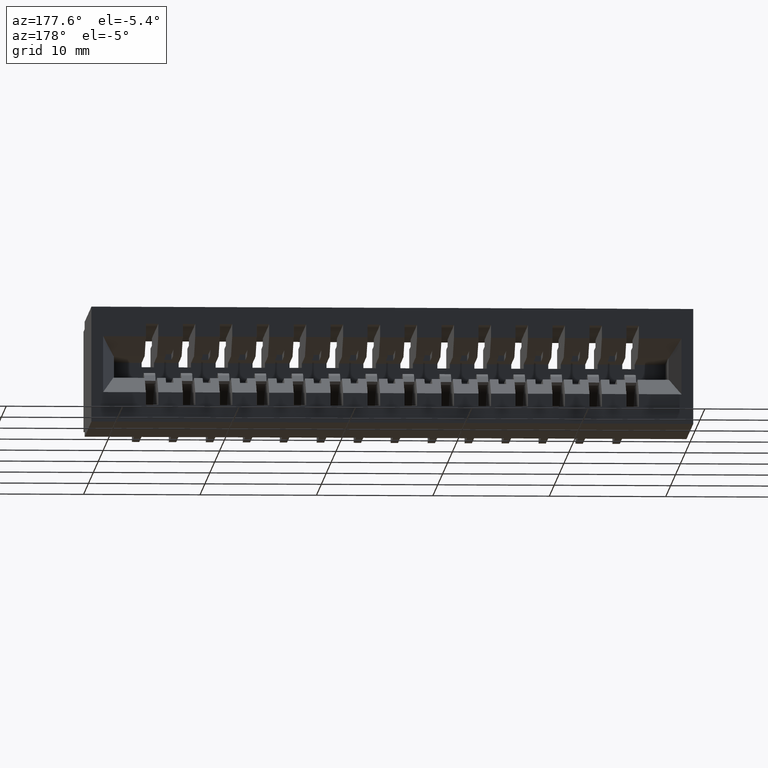
[diagram: clean part render]
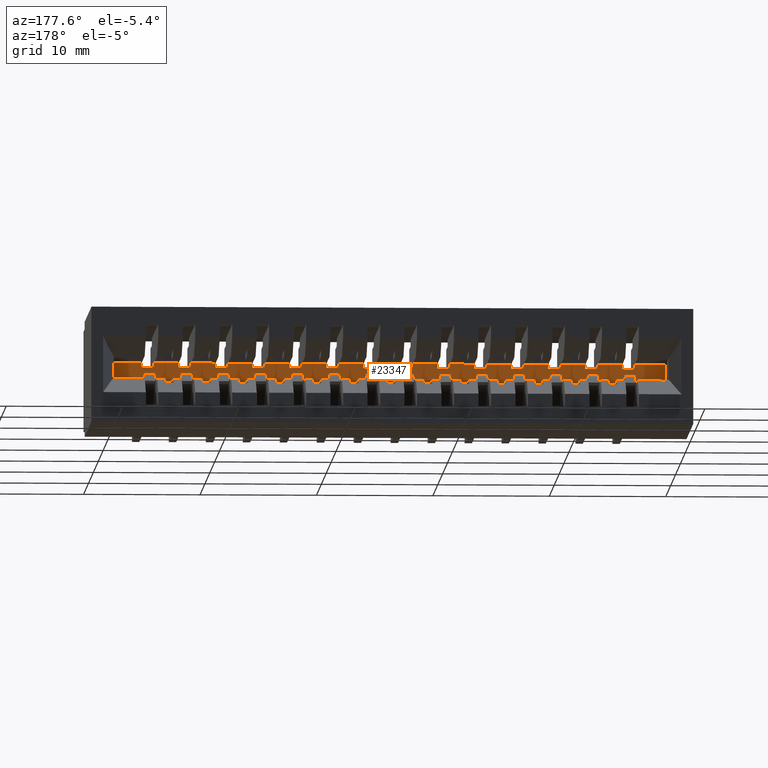
[diagram: same view with one face highlighted and labeled with its STEP entity id]
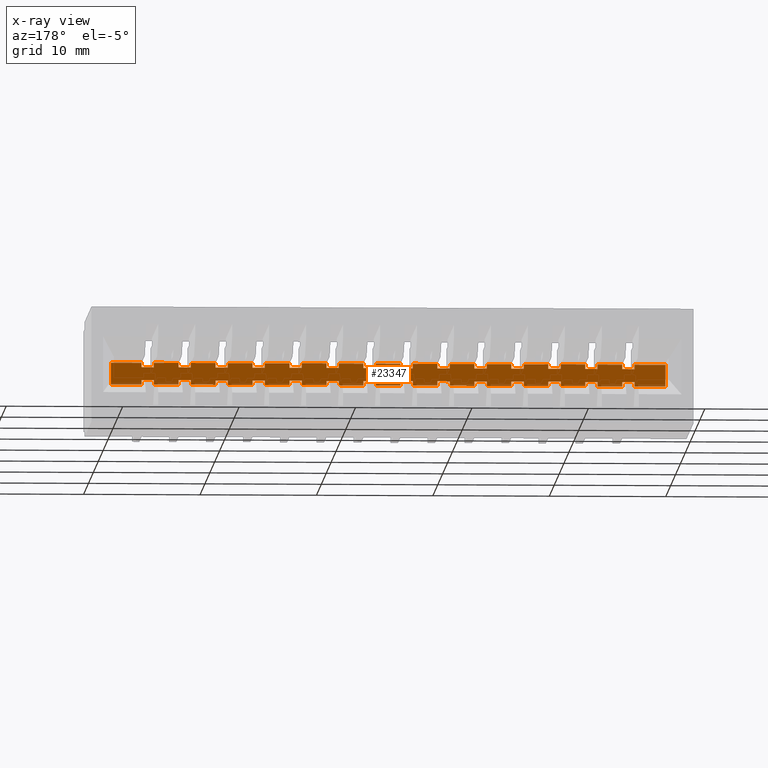
[diagram: x-ray of the same camera — body ghosted, the highlighted face saturated]
A machine part, auxiliary view. The second image highlights one B-rep face of the part: STEP entity #23347.
The next image is the same camera in x-ray: the body ghosted, the highlighted face saturated — about 5% of this face is hidden behind the body in this view.
In plain terms, the highlighted planar face has unit normal (0, -1, 0).
Its self-contained STEP definition (entity closure, byte-faithful):
#19 = VECTOR ( 'NONE', #13112, 39.37007874015748143 ) ;
#26 = ORIENTED_EDGE ( 'NONE', *, *, #3900, .T. ) ;
#40 = CARTESIAN_POINT ( 'NONE',  ( 1.808999999999999719, 0.3049999999999999378, -0.1580000000000000016 ) ) ;
#119 = LINE ( 'NONE', #15629, #3154 ) ;
#166 = DIRECTION ( 'NONE',  ( 2.385081683068867604E-16, 0.0000000000000000000, 1.000000000000000000 ) ) ;
#204 = VECTOR ( 'NONE', #9726, 39.37007874015748143 ) ;
#214 = EDGE_CURVE ( 'NONE', #19580, #10568, #2910, .T. ) ;
#241 = CARTESIAN_POINT ( 'NONE',  ( 1.955000000000000293, 0.3049999999999999378, -0.1580000000000000016 ) ) ;
#326 = VERTEX_POINT ( 'NONE', #7467 ) ;
#398 = ORIENTED_EDGE ( 'NONE', *, *, #22486, .T. ) ;
#435 = EDGE_CURVE ( 'NONE', #12052, #16539, #20054, .T. ) ;
#513 = CARTESIAN_POINT ( 'NONE',  ( 0.6839999999999996083, 0.3049999999999999378, -0.1729999999999995708 ) ) ;
#559 = VECTOR ( 'NONE', #21321, 39.37007874015748143 ) ;
#600 = LINE ( 'NONE', #21439, #6509 ) ;
#630 = LINE ( 'NONE', #8113, #4724 ) ;
#645 = ORIENTED_EDGE ( 'NONE', *, *, #21162, .F. ) ;
#653 = CARTESIAN_POINT ( 'NONE',  ( 1.183999999999999719, 0.3049999999999999378, -0.2169999999999998319 ) ) ;
#658 = VERTEX_POINT ( 'NONE', #7808 ) ;
#684 = CARTESIAN_POINT ( 'NONE',  ( 1.725999999999999535, 0.3049999999999999378, -0.1580000000000003624 ) ) ;
#686 = LINE ( 'NONE', #24072, #4042 ) ;
#693 = VERTEX_POINT ( 'NONE', #23084 ) ;
#723 = CARTESIAN_POINT ( 'NONE',  ( 1.955000000000000293, 0.3049999999999999378, -0.1580000000000000016 ) ) ;
#760 = DIRECTION ( 'NONE',  ( -1.000000000000000000, -0.0000000000000000000, -0.0000000000000000000 ) ) ;
#807 = VERTEX_POINT ( 'NONE', #9849 ) ;
#825 = VECTOR ( 'NONE', #3847, 39.37007874015748143 ) ;
#837 = CARTESIAN_POINT ( 'NONE',  ( 0.7259999999999997566, 0.3049999999999999378, -0.1580000000000001681 ) ) ;
#857 = LINE ( 'NONE', #18150, #19121 ) ;
#910 = VERTEX_POINT ( 'NONE', #1318 ) ;
#998 = CARTESIAN_POINT ( 'NONE',  ( 0.1839999999999997193, 0.3049999999999999378, -0.1580000000000000016 ) ) ;
#1022 = CARTESIAN_POINT ( 'NONE',  ( 0.07999999999999969635, 0.3049999999999999378, -0.2320000000000000118 ) ) ;
#1027 = CARTESIAN_POINT ( 'NONE',  ( -19685.03937007874265, 0.3049999999999999378, -0.1729999999954575096 ) ) ;
#1143 = VERTEX_POINT ( 'NONE', #17582 ) ;
#1167 = EDGE_CURVE ( 'NONE', #5988, #21725, #8166, .T. ) ;
#1185 = LINE ( 'NONE', #24452, #16182 ) ;
#1212 = LINE ( 'NONE', #10863, #17667 ) ;
#1219 = EDGE_CURVE ( 'NONE', #5966, #24618, #10333, .T. ) ;
#1265 = CARTESIAN_POINT ( 'NONE',  ( 1.100999999999999757, 0.3049999999999999378, -0.2169999999999998319 ) ) ;
#1274 = LINE ( 'NONE', #9023, #7608 ) ;
#1306 = VECTOR ( 'NONE', #16922, 39.37007874015748143 ) ;
#1318 = CARTESIAN_POINT ( 'NONE',  ( 1.558999999999999719, 0.3049999999999999378, -0.1729999999999995708 ) ) ;
#1325 = VECTOR ( 'NONE', #11952, 39.37007874015748143 ) ;
#1326 = CARTESIAN_POINT ( 'NONE',  ( 1.350999999999999979, 0.3049999999999999378, -0.2169999999999998319 ) ) ;
#1364 = CARTESIAN_POINT ( 'NONE',  ( 0.5589999999999996083, 0.3049999999999999378, -0.1729999999999995708 ) ) ;
#1392 = EDGE_CURVE ( 'NONE', #23572, #2699, #12478, .T. ) ;
#1403 = VECTOR ( 'NONE', #10572, 39.37007874015748143 ) ;
#1409 = ORIENTED_EDGE ( 'NONE', *, *, #15509, .T. ) ;
#1416 = ORIENTED_EDGE ( 'NONE', *, *, #23030, .T. ) ;
#1421 = DIRECTION ( 'NONE',  ( 2.385081683068867604E-16, 0.0000000000000000000, 1.000000000000000000 ) ) ;
#1425 = VERTEX_POINT ( 'NONE', #20862 ) ;
#1469 = VERTEX_POINT ( 'NONE', #11542 ) ;
#1518 = LINE ( 'NONE', #5460, #8593 ) ;
#1530 = ORIENTED_EDGE ( 'NONE', *, *, #8042, .T. ) ;
#1610 = EDGE_CURVE ( 'NONE', #9983, #19379, #15996, .T. ) ;
#1612 = LINE ( 'NONE', #3261, #4916 ) ;
#1615 = DIRECTION ( 'NONE',  ( 1.000000000000000000, 0.0000000000000000000, -2.307304048702924629E-16 ) ) ;
#1645 = CARTESIAN_POINT ( 'NONE',  ( -19685.03937007874265, 0.3049999999999999378, -0.1729999999954577039 ) ) ;
#1664 = DIRECTION ( 'NONE',  ( -1.000000000000000000, -0.0000000000000000000, -0.0000000000000000000 ) ) ;
#1670 = ORIENTED_EDGE ( 'NONE', *, *, #20269, .T. ) ;
#1724 = ORIENTED_EDGE ( 'NONE', *, *, #1834, .T. ) ;
#1739 = DIRECTION ( 'NONE',  ( 2.385081683068867604E-16, 0.0000000000000000000, 1.000000000000000000 ) ) ;
#1778 = DIRECTION ( 'NONE',  ( 1.000000000000000000, 0.0000000000000000000, -2.307304048702925122E-16 ) ) ;
#1781 = VECTOR ( 'NONE', #10204, 39.37007874015748143 ) ;
#1825 = CARTESIAN_POINT ( 'NONE',  ( 1.183999999999999719, 0.3049999999999999378, -0.1729999999999995708 ) ) ;
#1834 = EDGE_CURVE ( 'NONE', #11390, #6395, #12664, .T. ) ;
#1841 = CARTESIAN_POINT ( 'NONE',  ( -19685.03937007874265, 0.3049999999999999378, -0.1729999999954574819 ) ) ;
#1861 = VECTOR ( 'NONE', #18424, 39.37007874015748143 ) ;
#1887 = DIRECTION ( 'NONE',  ( 1.000000000000000000, 0.0000000000000000000, -2.307304048702924629E-16 ) ) ;
#1891 = EDGE_CURVE ( 'NONE', #16541, #20132, #19382, .T. ) ;
#1894 = LINE ( 'NONE', #17161, #16302 ) ;
#1918 = CARTESIAN_POINT ( 'NONE',  ( 0.07999999999999969635, 0.3049999999999999378, -0.2320000000000000118 ) ) ;
#1955 = ORIENTED_EDGE ( 'NONE', *, *, #15366, .T. ) ;
#1981 = LINE ( 'NONE', #3645, #19929 ) ;
#2058 = CARTESIAN_POINT ( 'NONE',  ( -19685.03937007874265, 0.3049999999999999378, -0.1729999999954577317 ) ) ;
#2085 = CARTESIAN_POINT ( 'NONE',  ( 1.225999999999999757, 0.3049999999999999378, -0.1580000000000000016 ) ) ;
#2097 = EDGE_CURVE ( 'NONE', #19333, #2240, #4646, .T. ) ;
#2219 = ORIENTED_EDGE ( 'NONE', *, *, #5170, .T. ) ;
#2220 = DIRECTION ( 'NONE',  ( 2.385081683068867604E-16, 0.0000000000000000000, 1.000000000000000000 ) ) ;
#2234 = VECTOR ( 'NONE', #4787, 39.37007874015748143 ) ;
#2240 = VERTEX_POINT ( 'NONE', #1326 ) ;
#2266 = VERTEX_POINT ( 'NONE', #1825 ) ;
#2274 = DIRECTION ( 'NONE',  ( 1.000000000000000000, -0.0000000000000000000, -0.0000000000000000000 ) ) ;
#2276 = DIRECTION ( 'NONE',  ( -1.000000000000000000, -0.0000000000000000000, -0.0000000000000000000 ) ) ;
#2298 = ORIENTED_EDGE ( 'NONE', *, *, #25015, .T. ) ;
#2302 = VERTEX_POINT ( 'NONE', #40 ) ;
#2312 = ORIENTED_EDGE ( 'NONE', *, *, #20727, .T. ) ;
#2414 = CARTESIAN_POINT ( 'NONE',  ( 0.3509999999999995901, 0.3049999999999999378, -0.1580000000000000571 ) ) ;
#2434 = DIRECTION ( 'NONE',  ( 2.385081683068867604E-16, 0.0000000000000000000, 1.000000000000000000 ) ) ;
#2488 = DIRECTION ( 'NONE',  ( 2.385081683068867604E-16, 0.0000000000000000000, 1.000000000000000000 ) ) ;
#2493 = CARTESIAN_POINT ( 'NONE',  ( 0.4339999999999996083, 0.3049999999999999378, -0.2320000000000000118 ) ) ;
#2527 = VERTEX_POINT ( 'NONE', #12242 ) ;
#2576 = EDGE_CURVE ( 'NONE', #18925, #13254, #12727, .T. ) ;
#2617 = CARTESIAN_POINT ( 'NONE',  ( 0.6009999999999996456, 0.3049999999999999378, -0.1580000000000001403 ) ) ;
#2623 = VERTEX_POINT ( 'NONE', #4738 ) ;
#2656 = CARTESIAN_POINT ( 'NONE',  ( -19685.03937007874265, 0.3049999999999999378, -0.1729999999954574819 ) ) ;
#2699 = VERTEX_POINT ( 'NONE', #23281 ) ;
#2751 = CARTESIAN_POINT ( 'NONE',  ( 0.3089999999999996083, 0.3049999999999999378, -0.1580000000000000016 ) ) ;
#2766 = VERTEX_POINT ( 'NONE', #25049 ) ;
#2794 = DIRECTION ( 'NONE',  ( 1.000000000000000000, 0.0000000000000000000, -2.307304048702924136E-16 ) ) ;
#2818 = CARTESIAN_POINT ( 'NONE',  ( 0.4339999999999996083, 0.3049999999999999378, -0.1580000000000000571 ) ) ;
#2822 = CARTESIAN_POINT ( 'NONE',  ( 1.955000000000000293, 0.3049999999999999378, -0.1580000000000000016 ) ) ;
#2853 = EDGE_CURVE ( 'NONE', #15919, #6450, #19973, .T. ) ;
#2857 = LINE ( 'NONE', #20278, #16767 ) ;
#2868 = VERTEX_POINT ( 'NONE', #653 ) ;
#2877 = CARTESIAN_POINT ( 'NONE',  ( 1.350999999999999979, 0.3049999999999999378, -0.1729999999999995708 ) ) ;
#2897 = CARTESIAN_POINT ( 'NONE',  ( 1.955000000000000293, 0.3049999999999999378, -0.1580000000000000016 ) ) ;
#2910 = LINE ( 'NONE', #10661, #1861 ) ;
#2924 = DIRECTION ( 'NONE',  ( 1.000000000000000000, 0.0000000000000000000, -2.307304048702924136E-16 ) ) ;
#2944 = CARTESIAN_POINT ( 'NONE',  ( 1.558999999999999719, 0.3049999999999999378, -0.2169999999999998319 ) ) ;
#2962 = CARTESIAN_POINT ( 'NONE',  ( 1.433999999999999719, 0.3049999999999999378, -0.2169999999999998319 ) ) ;
#3006 = DIRECTION ( 'NONE',  ( 2.385081683068867604E-16, 0.0000000000000000000, 1.000000000000000000 ) ) ;
#3011 = VERTEX_POINT ( 'NONE', #14740 ) ;
#3017 = EDGE_CURVE ( 'NONE', #22274, #21283, #4587, .T. ) ;
#3041 = DIRECTION ( 'NONE',  ( -1.000000000000000000, -0.0000000000000000000, -0.0000000000000000000 ) ) ;
#3049 = EDGE_CURVE ( 'NONE', #9410, #20752, #22135, .T. ) ;
#3059 = VECTOR ( 'NONE', #5248, 39.37007874015748143 ) ;
#3068 = DIRECTION ( 'NONE',  ( 1.000000000000000000, -0.0000000000000000000, -0.0000000000000000000 ) ) ;
#3081 = VECTOR ( 'NONE', #11298, 39.37007874015748143 ) ;
#3154 = VECTOR ( 'NONE', #21356, 39.37007874015748143 ) ;
#3211 = DIRECTION ( 'NONE',  ( -1.000000000000000000, -0.0000000000000000000, -0.0000000000000000000 ) ) ;
#3237 = CARTESIAN_POINT ( 'NONE',  ( -19685.03937007874265, 0.3049999999999999378, -0.1729999999954578704 ) ) ;
#3255 = ORIENTED_EDGE ( 'NONE', *, *, #22429, .T. ) ;
#3257 = VECTOR ( 'NONE', #21297, 39.37007874015748143 ) ;
#3260 = DIRECTION ( 'NONE',  ( -1.000000000000000000, -0.0000000000000000000, -0.0000000000000000000 ) ) ;
#3261 = CARTESIAN_POINT ( 'NONE',  ( -19685.03937007874265, 0.3049999999999999378, -0.2169999999954578540 ) ) ;
#3294 = EDGE_CURVE ( 'NONE', #15919, #2766, #8102, .T. ) ;
#3317 = DIRECTION ( 'NONE',  ( 1.000000000000000000, 0.0000000000000000000, -2.307304048702925122E-16 ) ) ;
#3341 = CARTESIAN_POINT ( 'NONE',  ( 0.4759999999999995901, 0.3049999999999999378, -0.1580000000000000848 ) ) ;
#3363 = EDGE_CURVE ( 'NONE', #18785, #21433, #12305, .T. ) ;
#3372 = CARTESIAN_POINT ( 'NONE',  ( 1.600999999999999757, 0.3049999999999999378, -0.2320000000000000118 ) ) ;
#3410 = CARTESIAN_POINT ( 'NONE',  ( 0.07999999999999969635, 0.3049999999999999378, -0.2320000000000000118 ) ) ;
#3424 = CARTESIAN_POINT ( 'NONE',  ( 0.8089999999999997193, 0.3049999999999999378, -0.1729999999999995153 ) ) ;
#3446 = VECTOR ( 'NONE', #11159, 39.37007874015748143 ) ;
#3452 = LINE ( 'NONE', #23160, #19 ) ;
#3568 = VERTEX_POINT ( 'NONE', #3975 ) ;
#3583 = LINE ( 'NONE', #2414, #13938 ) ;
#3621 = CARTESIAN_POINT ( 'NONE',  ( 0.8089999999999997193, 0.3049999999999999378, -0.1580000000000001681 ) ) ;
#3645 = CARTESIAN_POINT ( 'NONE',  ( -19685.03937007874265, 0.3049999999999999378, -0.2169999999954577985 ) ) ;
#3679 = VECTOR ( 'NONE', #11089, 39.37007874015748143 ) ;
#3686 = ORIENTED_EDGE ( 'NONE', *, *, #9767, .T. ) ;
#3687 = DIRECTION ( 'NONE',  ( 2.385081683068867604E-16, 0.0000000000000000000, 1.000000000000000000 ) ) ;
#3729 = VERTEX_POINT ( 'NONE', #17458 ) ;
#3797 = VERTEX_POINT ( 'NONE', #13007 ) ;
#3801 = DIRECTION ( 'NONE',  ( 2.385081683068867604E-16, 0.0000000000000000000, 1.000000000000000000 ) ) ;
#3847 = DIRECTION ( 'NONE',  ( 1.000000000000000000, 0.0000000000000000000, -2.307304048702924629E-16 ) ) ;
#3881 = CARTESIAN_POINT ( 'NONE',  ( 0.2259999999999996456, 0.3049999999999999378, -0.1580000000000000293 ) ) ;
#3900 = EDGE_CURVE ( 'NONE', #7595, #23860, #15801, .T. ) ;
#3925 = CARTESIAN_POINT ( 'NONE',  ( -19685.03937007874265, 0.3049999999999999378, -0.1729999999954575651 ) ) ;
#3958 = DIRECTION ( 'NONE',  ( 2.385081683068867604E-16, 0.0000000000000000000, 1.000000000000000000 ) ) ;
#3975 = CARTESIAN_POINT ( 'NONE',  ( 0.9759999999999996456, 0.3049999999999999378, -0.1580000000000000016 ) ) ;
#3990 = LINE ( 'NONE', #3621, #17817 ) ;
#4042 = VECTOR ( 'NONE', #6639, 39.37007874015748143 ) ;
#4082 = ORIENTED_EDGE ( 'NONE', *, *, #24313, .F. ) ;
#4093 = EDGE_CURVE ( 'NONE', #5224, #3797, #13109, .T. ) ;
#4153 = ORIENTED_EDGE ( 'NONE', *, *, #11443, .T. ) ;
#4173 = CARTESIAN_POINT ( 'NONE',  ( 0.5589999999999996083, 0.3049999999999999378, -0.2320000000000000118 ) ) ;
#4181 = DIRECTION ( 'NONE',  ( 1.000000000000000000, 0.0000000000000000000, -2.307304048702924629E-16 ) ) ;
#4226 = CARTESIAN_POINT ( 'NONE',  ( 1.558999999999999719, 0.3049999999999999378, -0.1580000000000003346 ) ) ;
#4249 = VECTOR ( 'NONE', #19196, 39.37007874015748143 ) ;
#4520 = VECTOR ( 'NONE', #10177, 39.37007874015748143 ) ;
#4544 = DIRECTION ( 'NONE',  ( 2.385081683068867604E-16, 0.0000000000000000000, 1.000000000000000000 ) ) ;
#4567 = CARTESIAN_POINT ( 'NONE',  ( 0.8509999999999997566, 0.3049999999999999378, -0.2169999999999998319 ) ) ;
#4576 = EDGE_CURVE ( 'NONE', #10950, #20010, #20041, .T. ) ;
#4587 = LINE ( 'NONE', #1022, #24015 ) ;
#4592 = ORIENTED_EDGE ( 'NONE', *, *, #1392, .F. ) ;
#4646 = LINE ( 'NONE', #23594, #16907 ) ;
#4691 = ORIENTED_EDGE ( 'NONE', *, *, #8295, .F. ) ;
#4724 = VECTOR ( 'NONE', #4181, 39.37007874015748143 ) ;
#4728 = LINE ( 'NONE', #12474, #12357 ) ;
#4738 = CARTESIAN_POINT ( 'NONE',  ( 1.058999999999999719, 0.3049999999999999378, -0.1729999999999995708 ) ) ;
#4742 = CARTESIAN_POINT ( 'NONE',  ( 1.100999999999999757, 0.3049999999999999378, -0.1580000000000002236 ) ) ;
#4762 = VECTOR ( 'NONE', #16803, 39.37007874015748143 ) ;
#4787 = DIRECTION ( 'NONE',  ( 2.385081683068867604E-16, 0.0000000000000000000, 1.000000000000000000 ) ) ;
#4873 = DIRECTION ( 'NONE',  ( 1.000000000000000000, 0.0000000000000000000, -2.307304048702924629E-16 ) ) ;
#4891 = CARTESIAN_POINT ( 'NONE',  ( 1.600999999999999757, 0.3049999999999999378, -0.1729999999999995708 ) ) ;
#4896 = ORIENTED_EDGE ( 'NONE', *, *, #22888, .F. ) ;
#4916 = VECTOR ( 'NONE', #13429, 39.37007874015748143 ) ;
#4919 = CARTESIAN_POINT ( 'NONE',  ( 0.7259999999999997566, 0.3049999999999999378, -0.1580000000000001681 ) ) ;
#5006 = CARTESIAN_POINT ( 'NONE',  ( 1.475999999999999757, 0.3049999999999999378, -0.1729999999999995708 ) ) ;
#5092 = EDGE_CURVE ( 'NONE', #23754, #7111, #22416, .T. ) ;
#5104 = ORIENTED_EDGE ( 'NONE', *, *, #24469, .T. ) ;
#5130 = CARTESIAN_POINT ( 'NONE',  ( -19685.03937007874265, 0.3049999999999999378, -0.1729999999954575929 ) ) ;
#5144 = ORIENTED_EDGE ( 'NONE', *, *, #10481, .T. ) ;
#5170 = EDGE_CURVE ( 'NONE', #8262, #5638, #6884, .T. ) ;
#5177 = CARTESIAN_POINT ( 'NONE',  ( 1.955000000000000293, 0.3049999999999999378, -0.1580000000000000016 ) ) ;
#5224 = VERTEX_POINT ( 'NONE', #19208 ) ;
#5232 = CARTESIAN_POINT ( 'NONE',  ( 0.6839999999999996083, 0.3049999999999999378, -0.1580000000000001403 ) ) ;
#5248 = DIRECTION ( 'NONE',  ( 1.000000000000000000, -0.0000000000000000000, -0.0000000000000000000 ) ) ;
#5292 = VERTEX_POINT ( 'NONE', #17434 ) ;
#5301 = CARTESIAN_POINT ( 'NONE',  ( 0.7259999999999997566, 0.3049999999999999378, -0.1729999999999995708 ) ) ;
#5308 = DIRECTION ( 'NONE',  ( 2.385081683068867604E-16, 0.0000000000000000000, 1.000000000000000000 ) ) ;
#5329 = VERTEX_POINT ( 'NONE', #5368 ) ;
#5331 = LINE ( 'NONE', #14868, #18345 ) ;
#5333 = VECTOR ( 'NONE', #9266, 39.37007874015748143 ) ;
#5336 = EDGE_CURVE ( 'NONE', #2266, #6115, #13115, .T. ) ;
#5368 = CARTESIAN_POINT ( 'NONE',  ( 0.3509999999999995901, 0.3049999999999999378, -0.1729999999999995708 ) ) ;
#5378 = EDGE_CURVE ( 'NONE', #22272, #12129, #23669, .T. ) ;
#5409 = VECTOR ( 'NONE', #15037, 39.37007874015748143 ) ;
#5445 = DIRECTION ( 'NONE',  ( 0.0000000000000000000, -1.000000000000000000, -0.0000000000000000000 ) ) ;
#5460 = CARTESIAN_POINT ( 'NONE',  ( -19685.03937007874265, 0.3049999999999999378, -0.2169999999954575765 ) ) ;
#5550 = EDGE_CURVE ( 'NONE', #910, #22454, #22016, .T. ) ;
#5597 = DIRECTION ( 'NONE',  ( 1.000000000000000000, -0.0000000000000000000, -0.0000000000000000000 ) ) ;
#5638 = VERTEX_POINT ( 'NONE', #1265 ) ;
#5652 = EDGE_CURVE ( 'NONE', #3729, #2240, #1518, .T. ) ;
#5666 = VERTEX_POINT ( 'NONE', #9394 ) ;
#5667 = VECTOR ( 'NONE', #11501, 39.37007874015748143 ) ;
#5673 = CARTESIAN_POINT ( 'NONE',  ( 1.100999999999999757, 0.3049999999999999378, -0.1729999999999995708 ) ) ;
#5685 = CARTESIAN_POINT ( 'NONE',  ( 0.07999999999999969635, 0.3049999999999999378, -0.1580000000000000016 ) ) ;
#5707 = LINE ( 'NONE', #22891, #3081 ) ;
#5722 = EDGE_CURVE ( 'NONE', #2623, #7795, #5331, .T. ) ;
#5727 = LINE ( 'NONE', #11318, #22335 ) ;
#5729 = VECTOR ( 'NONE', #6142, 39.37007874015748143 ) ;
#5773 = LINE ( 'NONE', #18758, #12347 ) ;
#5819 = VERTEX_POINT ( 'NONE', #4173 ) ;
#5900 = LINE ( 'NONE', #1841, #5667 ) ;
#5914 = CARTESIAN_POINT ( 'NONE',  ( 0.9339999999999996083, 0.3049999999999999378, -0.2320000000000000118 ) ) ;
#5966 = VERTEX_POINT ( 'NONE', #8372 ) ;
#5988 = VERTEX_POINT ( 'NONE', #1364 ) ;
#6008 = EDGE_CURVE ( 'NONE', #6648, #19333, #7075, .T. ) ;
#6058 = ORIENTED_EDGE ( 'NONE', *, *, #5336, .T. ) ;
#6115 = VERTEX_POINT ( 'NONE', #7197 ) ;
#6120 = CARTESIAN_POINT ( 'NONE',  ( -19685.03937007874265, 0.3049999999999999378, -0.2169999999954577152 ) ) ;
#6142 = DIRECTION ( 'NONE',  ( 2.385081683068867604E-16, 0.0000000000000000000, 1.000000000000000000 ) ) ;
#6174 = VERTEX_POINT ( 'NONE', #11872 ) ;
#6226 = CARTESIAN_POINT ( 'NONE',  ( 1.308999999999999941, 0.3049999999999999378, -0.1729999999999995708 ) ) ;
#6235 = CARTESIAN_POINT ( 'NONE',  ( 1.850999999999999757, 0.3049999999999999378, -0.1580000000000004179 ) ) ;
#6248 = CARTESIAN_POINT ( 'NONE',  ( 1.225999999999999757, 0.3049999999999999378, -0.2169999999999998319 ) ) ;
#6250 = DIRECTION ( 'NONE',  ( 1.000000000000000000, 0.0000000000000000000, -2.307304048702924629E-16 ) ) ;
#6253 = VECTOR ( 'NONE', #3958, 39.37007874015748143 ) ;
#6327 = ORIENTED_EDGE ( 'NONE', *, *, #12893, .F. ) ;
#6339 = LINE ( 'NONE', #2656, #14447 ) ;
#6395 = VERTEX_POINT ( 'NONE', #12984 ) ;
#6450 = VERTEX_POINT ( 'NONE', #1918 ) ;
#6501 = ORIENTED_EDGE ( 'NONE', *, *, #15833, .T. ) ;
#6509 = VECTOR ( 'NONE', #11907, 39.37007874015748143 ) ;
#6522 = CARTESIAN_POINT ( 'NONE',  ( 0.3509999999999995901, 0.3049999999999999378, -0.1580000000000000016 ) ) ;
#6527 = VECTOR ( 'NONE', #11161, 39.37007874015748143 ) ;
#6558 = ORIENTED_EDGE ( 'NONE', *, *, #11249, .F. ) ;
#6583 = DIRECTION ( 'NONE',  ( 2.385081683068867604E-16, 0.0000000000000000000, 1.000000000000000000 ) ) ;
#6611 = DIRECTION ( 'NONE',  ( 1.000000000000000000, 0.0000000000000000000, -2.307304048702924136E-16 ) ) ;
#6639 = DIRECTION ( 'NONE',  ( 0.0000000000000000000, 0.0000000000000000000, -1.000000000000000000 ) ) ;
#6648 = VERTEX_POINT ( 'NONE', #24279 ) ;
#6657 = CARTESIAN_POINT ( 'NONE',  ( 0.2259999999999997289, 0.3049999999999999378, -0.1580000000000000016 ) ) ;
#6676 = VECTOR ( 'NONE', #1778, 39.37007874015748143 ) ;
#6696 = ORIENTED_EDGE ( 'NONE', *, *, #10759, .F. ) ;
#6771 = CARTESIAN_POINT ( 'NONE',  ( 0.1839999999999996361, 0.3049999999999999378, -0.2320000000000000118 ) ) ;
#6859 = CARTESIAN_POINT ( 'NONE',  ( 0.4759999999999995901, 0.3049999999999999378, -0.2169999999999998319 ) ) ;
#6884 = LINE ( 'NONE', #4742, #12917 ) ;
#6888 = VECTOR ( 'NONE', #3317, 39.37007874015748143 ) ;
#6928 = EDGE_CURVE ( 'NONE', #8800, #7111, #8377, .T. ) ;
#6947 = ORIENTED_EDGE ( 'NONE', *, *, #7580, .F. ) ;
#6969 = EDGE_CURVE ( 'NONE', #11345, #19580, #11933, .T. ) ;
#7053 = ORIENTED_EDGE ( 'NONE', *, *, #4093, .F. ) ;
#7075 = LINE ( 'NONE', #13180, #18359 ) ;
#7081 = CARTESIAN_POINT ( 'NONE',  ( 1.955000000000000293, 0.3049999999999999378, -0.2320000000000000118 ) ) ;
#7084 = VECTOR ( 'NONE', #20951, 39.37007874015748143 ) ;
#7091 = CARTESIAN_POINT ( 'NONE',  ( 1.225999999999999757, 0.3049999999999999378, -0.1580000000000002791 ) ) ;
#7111 = VERTEX_POINT ( 'NONE', #998 ) ;
#7116 = DIRECTION ( 'NONE',  ( -1.000000000000000000, -0.0000000000000000000, -0.0000000000000000000 ) ) ;
#7147 = LINE ( 'NONE', #7272, #5409 ) ;
#7189 = ORIENTED_EDGE ( 'NONE', *, *, #1167, .F. ) ;
#7190 = EDGE_CURVE ( 'NONE', #23584, #9231, #13301, .T. ) ;
#7197 = CARTESIAN_POINT ( 'NONE',  ( 1.225999999999999757, 0.3049999999999999378, -0.1729999999999995708 ) ) ;
#7211 = LINE ( 'NONE', #7091, #6527 ) ;
#7259 = ORIENTED_EDGE ( 'NONE', *, *, #9472, .T. ) ;
#7270 = VECTOR ( 'NONE', #2276, 39.37007874015748143 ) ;
#7272 = CARTESIAN_POINT ( 'NONE',  ( 1.475999999999999757, 0.3049999999999999378, -0.1580000000000003346 ) ) ;
#7303 = VECTOR ( 'NONE', #13757, 39.37007874015748143 ) ;
#7334 = DIRECTION ( 'NONE',  ( 1.000000000000000000, -0.0000000000000000000, -0.0000000000000000000 ) ) ;
#7351 = VECTOR ( 'NONE', #2794, 39.37007874015748143 ) ;
#7355 = VERTEX_POINT ( 'NONE', #22214 ) ;
#7461 = CARTESIAN_POINT ( 'NONE',  ( 1.955000000000000293, 0.3049999999999999378, -0.1580000000000000016 ) ) ;
#7467 = CARTESIAN_POINT ( 'NONE',  ( 0.4759999999999995901, 0.3049999999999999378, -0.2320000000000000118 ) ) ;
#7477 = VERTEX_POINT ( 'NONE', #24116 ) ;
#7501 = CARTESIAN_POINT ( 'NONE',  ( 0.5589999999999996083, 0.3049999999999999378, -0.2169999999999998319 ) ) ;
#7504 = DIRECTION ( 'NONE',  ( 2.385081683068867604E-16, 0.0000000000000000000, 1.000000000000000000 ) ) ;
#7547 = ORIENTED_EDGE ( 'NONE', *, *, #18680, .T. ) ;
#7563 = VERTEX_POINT ( 'NONE', #11747 ) ;
#7577 = CARTESIAN_POINT ( 'NONE',  ( 0.8509999999999997566, 0.3049999999999999378, -0.2320000000000000118 ) ) ;
#7580 = EDGE_CURVE ( 'NONE', #23726, #18135, #3990, .T. ) ;
#7591 = EDGE_CURVE ( 'NONE', #7355, #11639, #24982, .T. ) ;
#7595 = VERTEX_POINT ( 'NONE', #13162 ) ;
#7608 = VECTOR ( 'NONE', #11807, 39.37007874015748143 ) ;
#7610 = ORIENTED_EDGE ( 'NONE', *, *, #22899, .T. ) ;
#7681 = VERTEX_POINT ( 'NONE', #9846 ) ;
#7745 = CARTESIAN_POINT ( 'NONE',  ( 1.955000000000000293, 0.3049999999999999378, -0.1580000000000000016 ) ) ;
#7776 = VECTOR ( 'NONE', #20875, 39.37007874015748143 ) ;
#7795 = VERTEX_POINT ( 'NONE', #17040 ) ;
#7808 = CARTESIAN_POINT ( 'NONE',  ( 1.225999999999999757, 0.3049999999999999378, -0.2320000000000000118 ) ) ;
#7846 = EDGE_CURVE ( 'NONE', #15872, #19707, #16791, .T. ) ;
#7914 = DIRECTION ( 'NONE',  ( 1.000000000000000000, 0.0000000000000000000, -2.307304048702924629E-16 ) ) ;
#7943 = ORIENTED_EDGE ( 'NONE', *, *, #1219, .T. ) ;
#7966 = CARTESIAN_POINT ( 'NONE',  ( 1.308999999999999941, 0.3049999999999999378, -0.1580000000000000016 ) ) ;
#7979 = CARTESIAN_POINT ( 'NONE',  ( 0.1839999999999996638, 0.3049999999999999378, -0.1580000000000000293 ) ) ;
#8042 = EDGE_CURVE ( 'NONE', #17785, #11119, #14364, .T. ) ;
#8045 = LINE ( 'NONE', #22723, #5729 ) ;
#8046 = ORIENTED_EDGE ( 'NONE', *, *, #12904, .T. ) ;
#8070 = VERTEX_POINT ( 'NONE', #18174 ) ;
#8102 = LINE ( 'NONE', #7979, #11815 ) ;
#8113 = CARTESIAN_POINT ( 'NONE',  ( -19685.03937007874265, 0.3049999999999999378, -0.2169999999954576875 ) ) ;
#8145 = VECTOR ( 'NONE', #12772, 39.37007874015748143 ) ;
#8166 = LINE ( 'NONE', #15794, #1781 ) ;
#8180 = VERTEX_POINT ( 'NONE', #15112 ) ;
#8207 = CARTESIAN_POINT ( 'NONE',  ( 1.850999999999999757, 0.3049999999999999378, -0.1729999999999995708 ) ) ;
#8262 = VERTEX_POINT ( 'NONE', #16515 ) ;
#8287 = ORIENTED_EDGE ( 'NONE', *, *, #12240, .F. ) ;
#8295 = EDGE_CURVE ( 'NONE', #23247, #807, #14854, .T. ) ;
#8359 = DIRECTION ( 'NONE',  ( 2.385081683068867604E-16, 0.0000000000000000000, 1.000000000000000000 ) ) ;
#8372 = CARTESIAN_POINT ( 'NONE',  ( 1.850999999999999757, 0.3049999999999999378, -0.2320000000000000118 ) ) ;
#8377 = LINE ( 'NONE', #23385, #10934 ) ;
#8397 = CARTESIAN_POINT ( 'NONE',  ( 0.7259999999999997566, 0.3049999999999999378, -0.2320000000000000118 ) ) ;
#8470 = DIRECTION ( 'NONE',  ( 1.000000000000000000, 0.0000000000000000000, -2.307304048702924629E-16 ) ) ;
#8490 = EDGE_CURVE ( 'NONE', #5819, #21917, #857, .T. ) ;
#8545 = LINE ( 'NONE', #2822, #8925 ) ;
#8574 = CARTESIAN_POINT ( 'NONE',  ( 0.3509999999999995901, 0.3049999999999999378, -0.2320000000000000118 ) ) ;
#8593 = VECTOR ( 'NONE', #1887, 39.37007874015748143 ) ;
#8599 = DIRECTION ( 'NONE',  ( 1.000000000000000000, 0.0000000000000000000, -2.307304048702924629E-16 ) ) ;
#8620 = ORIENTED_EDGE ( 'NONE', *, *, #24080, .F. ) ;
#8681 = CARTESIAN_POINT ( 'NONE',  ( 0.1839999999999996638, 0.3049999999999999378, -0.1580000000000000293 ) ) ;
#8690 = LINE ( 'NONE', #5130, #14978 ) ;
#8696 = DIRECTION ( 'NONE',  ( 2.385081683068867604E-16, 0.0000000000000000000, 1.000000000000000000 ) ) ;
#8744 = CARTESIAN_POINT ( 'NONE',  ( 0.6839999999999996083, 0.3049999999999999378, -0.2320000000000000118 ) ) ;
#8800 = VERTEX_POINT ( 'NONE', #18124 ) ;
#8823 = EDGE_CURVE ( 'NONE', #22454, #1425, #13924, .T. ) ;
#8839 = DIRECTION ( 'NONE',  ( 2.385081683068867604E-16, 0.0000000000000000000, 1.000000000000000000 ) ) ;
#8878 = ORIENTED_EDGE ( 'NONE', *, *, #14189, .T. ) ;
#8925 = VECTOR ( 'NONE', #3068, 39.37007874015748143 ) ;
#8985 = LINE ( 'NONE', #5177, #13828 ) ;
#9023 = CARTESIAN_POINT ( 'NONE',  ( 1.683999999999999497, 0.3049999999999999378, -0.1580000000000003624 ) ) ;
#9033 = ORIENTED_EDGE ( 'NONE', *, *, #17587, .F. ) ;
#9081 = EDGE_CURVE ( 'NONE', #18009, #11390, #21397, .T. ) ;
#9102 = LINE ( 'NONE', #24493, #19883 ) ;
#9212 = ORIENTED_EDGE ( 'NONE', *, *, #7591, .T. ) ;
#9217 = EDGE_CURVE ( 'NONE', #21433, #24618, #13892, .T. ) ;
#9231 = VERTEX_POINT ( 'NONE', #22037 ) ;
#9232 = ORIENTED_EDGE ( 'NONE', *, *, #14015, .T. ) ;
#9266 = DIRECTION ( 'NONE',  ( -1.000000000000000000, -0.0000000000000000000, -0.0000000000000000000 ) ) ;
#9285 = DIRECTION ( 'NONE',  ( 1.000000000000000000, -0.0000000000000000000, -0.0000000000000000000 ) ) ;
#9307 = CARTESIAN_POINT ( 'NONE',  ( 1.955000000000000293, 0.3049999999999999378, -0.1580000000000000016 ) ) ;
#9337 = VECTOR ( 'NONE', #9285, 39.37007874015748143 ) ;
#9368 = LINE ( 'NONE', #24755, #13961 ) ;
#9394 = CARTESIAN_POINT ( 'NONE',  ( 1.058999999999999719, 0.3049999999999999378, -0.2169999999999998319 ) ) ;
#9409 = EDGE_CURVE ( 'NONE', #23860, #2302, #8545, .T. ) ;
#9410 = VERTEX_POINT ( 'NONE', #2944 ) ;
#9472 = EDGE_CURVE ( 'NONE', #18785, #11106, #24673, .T. ) ;
#9485 = ORIENTED_EDGE ( 'NONE', *, *, #12516, .T. ) ;
#9487 = EDGE_CURVE ( 'NONE', #1425, #20593, #15270, .T. ) ;
#9523 = EDGE_CURVE ( 'NONE', #11416, #1469, #5727, .T. ) ;
#9531 = EDGE_CURVE ( 'NONE', #17689, #8180, #22909, .T. ) ;
#9566 = DIRECTION ( 'NONE',  ( 1.000000000000000000, 0.0000000000000000000, -2.307304048702924136E-16 ) ) ;
#9645 = VERTEX_POINT ( 'NONE', #19932 ) ;
#9653 = DIRECTION ( 'NONE',  ( 1.000000000000000000, 0.0000000000000000000, -2.307304048702924629E-16 ) ) ;
#9726 = DIRECTION ( 'NONE',  ( 2.385081683068867604E-16, 0.0000000000000000000, 1.000000000000000000 ) ) ;
#9767 = EDGE_CURVE ( 'NONE', #6174, #7477, #9102, .T. ) ;
#9845 = LINE ( 'NONE', #14048, #18602 ) ;
#9846 = CARTESIAN_POINT ( 'NONE',  ( 0.9759999999999996456, 0.3049999999999999378, -0.2169999999999998597 ) ) ;
#9849 = CARTESIAN_POINT ( 'NONE',  ( 1.433999999999999719, 0.3049999999999999378, -0.1580000000000000016 ) ) ;
#9966 = ORIENTED_EDGE ( 'NONE', *, *, #3049, .F. ) ;
#9983 = VERTEX_POINT ( 'NONE', #5914 ) ;
#10008 = CARTESIAN_POINT ( 'NONE',  ( 0.8089999999999997193, 0.3049999999999999378, -0.1580000000000001681 ) ) ;
#10097 = LINE ( 'NONE', #19763, #10317 ) ;
#10177 = DIRECTION ( 'NONE',  ( -1.000000000000000000, -0.0000000000000000000, -0.0000000000000000000 ) ) ;
#10182 = VECTOR ( 'NONE', #13556, 39.37007874015748143 ) ;
#10204 = DIRECTION ( 'NONE',  ( 2.385081683068867604E-16, 0.0000000000000000000, 1.000000000000000000 ) ) ;
#10249 = ORIENTED_EDGE ( 'NONE', *, *, #24598, .T. ) ;
#10260 = VECTOR ( 'NONE', #11166, 39.37007874015748143 ) ;
#10265 = VECTOR ( 'NONE', #21648, 39.37007874015748143 ) ;
#10317 = VECTOR ( 'NONE', #12132, 39.37007874015748143 ) ;
#10333 = LINE ( 'NONE', #12234, #10265 ) ;
#10366 = EDGE_CURVE ( 'NONE', #23572, #23003, #13639, .T. ) ;
#10375 = DIRECTION ( 'NONE',  ( 2.385081683068867604E-16, 0.0000000000000000000, 1.000000000000000000 ) ) ;
#10404 = ORIENTED_EDGE ( 'NONE', *, *, #3017, .T. ) ;
#10481 = EDGE_CURVE ( 'NONE', #22130, #16852, #686, .T. ) ;
#10526 = CARTESIAN_POINT ( 'NONE',  ( 1.683999999999999497, 0.3049999999999999378, -0.1580000000000003624 ) ) ;
#10568 = VERTEX_POINT ( 'NONE', #23823 ) ;
#10572 = DIRECTION ( 'NONE',  ( 2.385081683068867604E-16, 0.0000000000000000000, 1.000000000000000000 ) ) ;
#10598 = CARTESIAN_POINT ( 'NONE',  ( 1.308999999999999941, 0.3049999999999999378, -0.1580000000000003069 ) ) ;
#10601 = EDGE_CURVE ( 'NONE', #18009, #19914, #16551, .T. ) ;
#10625 = EDGE_CURVE ( 'NONE', #9645, #658, #12851, .T. ) ;
#10661 = CARTESIAN_POINT ( 'NONE',  ( 0.6009999999999996456, 0.3049999999999999378, -0.1580000000000001403 ) ) ;
#10684 = CARTESIAN_POINT ( 'NONE',  ( 1.850999999999999757, 0.3049999999999999378, -0.1580000000000000016 ) ) ;
#10702 = CARTESIAN_POINT ( 'NONE',  ( 0.07999999999999969635, 0.3049999999999999378, -0.2320000000000000118 ) ) ;
#10705 = VECTOR ( 'NONE', #10834, 39.37007874015748143 ) ;
#10740 = VECTOR ( 'NONE', #6250, 39.37007874015748143 ) ;
#10759 = EDGE_CURVE ( 'NONE', #7563, #2868, #3452, .T. ) ;
#10775 = VECTOR ( 'NONE', #15407, 39.37007874015748143 ) ;
#10834 = DIRECTION ( 'NONE',  ( 2.385081683068867604E-16, 0.0000000000000000000, 1.000000000000000000 ) ) ;
#10841 = LINE ( 'NONE', #18733, #18032 ) ;
#10863 = CARTESIAN_POINT ( 'NONE',  ( 0.07999999999999969635, 0.3049999999999999378, -0.2320000000000000118 ) ) ;
#10891 = CARTESIAN_POINT ( 'NONE',  ( 0.9339999999999996083, 0.3049999999999999378, -0.1580000000000001958 ) ) ;
#10934 = VECTOR ( 'NONE', #13705, 39.37007874015748143 ) ;
#10935 = ORIENTED_EDGE ( 'NONE', *, *, #12738, .F. ) ;
#10950 = VERTEX_POINT ( 'NONE', #8397 ) ;
#11011 = VERTEX_POINT ( 'NONE', #12459 ) ;
#11043 = EDGE_CURVE ( 'NONE', #693, #20731, #16409, .T. ) ;
#11065 = CARTESIAN_POINT ( 'NONE',  ( 0.07999999999999969635, 0.3049999999999999378, -0.2320000000000000118 ) ) ;
#11089 = DIRECTION ( 'NONE',  ( 2.385081683068867604E-16, 0.0000000000000000000, 1.000000000000000000 ) ) ;
#11106 = VERTEX_POINT ( 'NONE', #14743 ) ;
#11119 = VERTEX_POINT ( 'NONE', #14990 ) ;
#11159 = DIRECTION ( 'NONE',  ( 1.000000000000000000, -0.0000000000000000000, -0.0000000000000000000 ) ) ;
#11161 = DIRECTION ( 'NONE',  ( 2.385081683068867604E-16, 0.0000000000000000000, 1.000000000000000000 ) ) ;
#11166 = DIRECTION ( 'NONE',  ( -1.000000000000000000, -0.0000000000000000000, -0.0000000000000000000 ) ) ;
#11231 = EDGE_CURVE ( 'NONE', #1469, #18484, #8985, .T. ) ;
#11249 = EDGE_CURVE ( 'NONE', #15872, #18975, #24016, .T. ) ;
#11298 = DIRECTION ( 'NONE',  ( 2.385081683068867604E-16, 0.0000000000000000000, 1.000000000000000000 ) ) ;
#11318 = CARTESIAN_POINT ( 'NONE',  ( 1.100999999999999757, 0.3049999999999999378, -0.1580000000000002236 ) ) ;
#11345 = VERTEX_POINT ( 'NONE', #8744 ) ;
#11362 = VECTOR ( 'NONE', #16677, 39.37007874015748143 ) ;
#11390 = VERTEX_POINT ( 'NONE', #5301 ) ;
#11396 = EDGE_CURVE ( 'NONE', #2766, #11639, #1612, .T. ) ;
#11416 = VERTEX_POINT ( 'NONE', #5673 ) ;
#11432 = ORIENTED_EDGE ( 'NONE', *, *, #14782, .T. ) ;
#11443 = EDGE_CURVE ( 'NONE', #19707, #20752, #8045, .T. ) ;
#11444 = ORIENTED_EDGE ( 'NONE', *, *, #5378, .T. ) ;
#11447 = CARTESIAN_POINT ( 'NONE',  ( 0.4339999999999996083, 0.3049999999999999378, -0.1580000000000000571 ) ) ;
#11474 = DIRECTION ( 'NONE',  ( 1.000000000000000000, 0.0000000000000000000, -2.307304048702924629E-16 ) ) ;
#11501 = DIRECTION ( 'NONE',  ( 1.000000000000000000, 0.0000000000000000000, -2.307304048702924629E-16 ) ) ;
#11511 = VERTEX_POINT ( 'NONE', #6522 ) ;
#11537 = CARTESIAN_POINT ( 'NONE',  ( 1.683999999999999497, 0.3049999999999999378, -0.1580000000000000016 ) ) ;
#11542 = CARTESIAN_POINT ( 'NONE',  ( 1.100999999999999757, 0.3049999999999999378, -0.1580000000000000016 ) ) ;
#11560 = CARTESIAN_POINT ( 'NONE',  ( 0.07999999999999969635, 0.3049999999999999378, -0.2320000000000000118 ) ) ;
#11570 = CARTESIAN_POINT ( 'NONE',  ( 1.850999999999999757, 0.3049999999999999378, -0.2169999999999998319 ) ) ;
#11639 = VERTEX_POINT ( 'NONE', #14529 ) ;
#11673 = DIRECTION ( 'NONE',  ( 1.000000000000000000, 0.0000000000000000000, -2.307304048702924629E-16 ) ) ;
#11747 = CARTESIAN_POINT ( 'NONE',  ( 1.183999999999999719, 0.3049999999999999378, -0.2320000000000000118 ) ) ;
#11756 = LINE ( 'NONE', #15327, #22140 ) ;
#11807 = DIRECTION ( 'NONE',  ( 2.385081683068867604E-16, 0.0000000000000000000, 1.000000000000000000 ) ) ;
#11815 = VECTOR ( 'NONE', #21847, 39.37007874015748143 ) ;
#11848 = LINE ( 'NONE', #4226, #6253 ) ;
#11872 = CARTESIAN_POINT ( 'NONE',  ( 1.058999999999999719, 0.3049999999999999378, -0.2320000000000000118 ) ) ;
#11880 = CARTESIAN_POINT ( 'NONE',  ( 1.808999999999999719, 0.3049999999999999378, -0.2320000000000000118 ) ) ;
#11887 = CARTESIAN_POINT ( 'NONE',  ( 1.600999999999999757, 0.3049999999999999378, -0.1580000000000003624 ) ) ;
#11907 = DIRECTION ( 'NONE',  ( 1.000000000000000000, 0.0000000000000000000, -2.307304048702925122E-16 ) ) ;
#11915 = CARTESIAN_POINT ( 'NONE',  ( 0.9759999999999996456, 0.3049999999999999378, -0.1729999999999995985 ) ) ;
#11933 = LINE ( 'NONE', #19689, #7270 ) ;
#11952 = DIRECTION ( 'NONE',  ( 1.000000000000000000, 0.0000000000000000000, -2.307304048702924629E-16 ) ) ;
#12015 = CARTESIAN_POINT ( 'NONE',  ( -19685.03937007874265, 0.3049999999999999378, -0.2169999999954577707 ) ) ;
#12052 = VERTEX_POINT ( 'NONE', #3424 ) ;
#12092 = VECTOR ( 'NONE', #5308, 39.37007874015748143 ) ;
#12121 = CARTESIAN_POINT ( 'NONE',  ( 1.475999999999999757, 0.3049999999999999378, -0.1580000000000000016 ) ) ;
#12129 = VERTEX_POINT ( 'NONE', #10684 ) ;
#12132 = DIRECTION ( 'NONE',  ( 2.385081683068867604E-16, 0.0000000000000000000, 1.000000000000000000 ) ) ;
#12160 = CARTESIAN_POINT ( 'NONE',  ( 0.6009999999999996456, 0.3049999999999999378, -0.1729999999999995708 ) ) ;
#12168 = ORIENTED_EDGE ( 'NONE', *, *, #12208, .T. ) ;
#12175 = VERTEX_POINT ( 'NONE', #6859 ) ;
#12208 = EDGE_CURVE ( 'NONE', #12052, #22101, #13332, .T. ) ;
#12234 = CARTESIAN_POINT ( 'NONE',  ( 1.850999999999999757, 0.3049999999999999378, -0.1580000000000004179 ) ) ;
#12240 = EDGE_CURVE ( 'NONE', #19573, #14214, #1894, .T. ) ;
#12242 = CARTESIAN_POINT ( 'NONE',  ( 0.8509999999999997566, 0.3049999999999999378, -0.1580000000000000016 ) ) ;
#12262 = EDGE_CURVE ( 'NONE', #16852, #5966, #15370, .T. ) ;
#12305 = LINE ( 'NONE', #16961, #19964 ) ;
#12347 = VECTOR ( 'NONE', #15315, 39.37007874015748143 ) ;
#12357 = VECTOR ( 'NONE', #20232, 39.37007874015748143 ) ;
#12400 = LINE ( 'NONE', #2617, #19610 ) ;
#12406 = VERTEX_POINT ( 'NONE', #4567 ) ;
#12415 = LINE ( 'NONE', #22212, #16589 ) ;
#12439 = VERTEX_POINT ( 'NONE', #21736 ) ;
#12455 = ORIENTED_EDGE ( 'NONE', *, *, #9523, .T. ) ;
#12459 = CARTESIAN_POINT ( 'NONE',  ( 1.808999999999999719, 0.3049999999999999378, -0.1729999999999995708 ) ) ;
#12474 = CARTESIAN_POINT ( 'NONE',  ( 0.8509999999999997566, 0.3049999999999999378, -0.1580000000000001681 ) ) ;
#12478 = LINE ( 'NONE', #2818, #1403 ) ;
#12516 = EDGE_CURVE ( 'NONE', #11511, #2699, #24377, .T. ) ;
#12519 = VECTOR ( 'NONE', #20925, 39.37007874015748143 ) ;
#12527 = LINE ( 'NONE', #12652, #19282 ) ;
#12640 = VERTEX_POINT ( 'NONE', #7577 ) ;
#12652 = CARTESIAN_POINT ( 'NONE',  ( 0.9759999999999996456, 0.3049999999999999378, -0.1580000000000001958 ) ) ;
#12664 = LINE ( 'NONE', #4919, #16848 ) ;
#12681 = CARTESIAN_POINT ( 'NONE',  ( 1.725999999999999535, 0.3049999999999999378, -0.2169999999999998597 ) ) ;
#12714 = EDGE_CURVE ( 'NONE', #19881, #18401, #17375, .T. ) ;
#12727 = LINE ( 'NONE', #16549, #4762 ) ;
#12734 = DIRECTION ( 'NONE',  ( 2.385081683068867604E-16, 0.0000000000000000000, 1.000000000000000000 ) ) ;
#12738 = EDGE_CURVE ( 'NONE', #23590, #12175, #1981, .T. ) ;
#12743 = DIRECTION ( 'NONE',  ( 2.385081683068867604E-16, 0.0000000000000000000, 1.000000000000000000 ) ) ;
#12756 = ORIENTED_EDGE ( 'NONE', *, *, #19936, .F. ) ;
#12772 = DIRECTION ( 'NONE',  ( 1.000000000000000000, -0.0000000000000000000, -0.0000000000000000000 ) ) ;
#12780 = CARTESIAN_POINT ( 'NONE',  ( 0.4339999999999996083, 0.3049999999999999378, -0.2169999999999998319 ) ) ;
#12820 = VECTOR ( 'NONE', #2274, 39.37007874015748143 ) ;
#12850 = EDGE_LOOP ( 'NONE', ( #15738, #7943, #13478, #24585, #7259, #1955, #8620, #6558, #17639, #4153, #9966, #12756, #1530, #7610, #13958, #16315, #22106, #21557, #22979, #20809, #14144, #16076, #14894, #6696, #15912, #2219, #6327, #23292, #3686, #21784, #4896, #21762, #8878, #6501, #24301, #6947, #24330, #12936, #4082, #22282, #13986, #17055, #645, #15712, #18057, #1670, #10935, #17670, #10404, #1416, #14746, #7053, #398, #9212, #19909, #20473, #14119, #2312, #15574, #20941, #20775, #18257, #11432, #8287, #23409, #2298, #9485, #4592, #19440, #24155, #22538, #7189, #15671, #3255, #9232, #19442, #22024, #1724, #10249, #25029, #12168, #5104, #17626, #14423, #20869, #14252, #24998, #14261, #16517, #12455, #19556, #22691, #6058, #16170, #23757, #9033, #22541, #17391, #22418, #4691, #20233, #18697, #19048, #24834, #24522, #17364, #16059, #13573, #7547, #26, #19681, #24528, #1409, #11444, #8046, #5144 ) ) ;
#12851 = LINE ( 'NONE', #10702, #11362 ) ;
#12893 = EDGE_CURVE ( 'NONE', #5666, #5638, #600, .T. ) ;
#12894 = LINE ( 'NONE', #3237, #18878 ) ;
#12904 = EDGE_CURVE ( 'NONE', #12129, #22130, #21703, .T. ) ;
#12917 = VECTOR ( 'NONE', #12734, 39.37007874015748143 ) ;
#12936 = ORIENTED_EDGE ( 'NONE', *, *, #4576, .T. ) ;
#12984 = CARTESIAN_POINT ( 'NONE',  ( 0.7259999999999997566, 0.3049999999999999378, -0.1580000000000000016 ) ) ;
#13007 = CARTESIAN_POINT ( 'NONE',  ( 0.3089999999999996083, 0.3049999999999999378, -0.2169999999999998319 ) ) ;
#13042 = VECTOR ( 'NONE', #15965, 39.37007874015748143 ) ;
#13055 = CARTESIAN_POINT ( 'NONE',  ( 1.350999999999999979, 0.3049999999999999378, -0.1580000000000003069 ) ) ;
#13064 = CARTESIAN_POINT ( 'NONE',  ( 1.350999999999999979, 0.3049999999999999378, -0.2320000000000000118 ) ) ;
#13088 = EDGE_CURVE ( 'NONE', #11011, #2302, #5773, .T. ) ;
#13096 = CARTESIAN_POINT ( 'NONE',  ( -19685.03937007874265, 0.3049999999999999378, -0.2169999999954576875 ) ) ;
#13109 = LINE ( 'NONE', #15390, #14279 ) ;
#13112 = DIRECTION ( 'NONE',  ( 2.385081683068867604E-16, 0.0000000000000000000, 1.000000000000000000 ) ) ;
#13115 = LINE ( 'NONE', #24936, #7776 ) ;
#13148 = DIRECTION ( 'NONE',  ( 2.385081683068867604E-16, 0.0000000000000000000, 1.000000000000000000 ) ) ;
#13153 = VECTOR ( 'NONE', #11474, 39.37007874015748143 ) ;
#13162 = CARTESIAN_POINT ( 'NONE',  ( 1.725999999999999535, 0.3049999999999999378, -0.1729999999999995985 ) ) ;
#13180 = CARTESIAN_POINT ( 'NONE',  ( 0.07999999999999969635, 0.3049999999999999378, -0.2320000000000000118 ) ) ;
#13191 = CARTESIAN_POINT ( 'NONE',  ( 1.955000000000000293, 0.3049999999999999378, -0.1580000000000000016 ) ) ;
#13194 = DIRECTION ( 'NONE',  ( 0.0000000000000000000, 0.0000000000000000000, -1.000000000000000000 ) ) ;
#13217 = CARTESIAN_POINT ( 'NONE',  ( 0.8089999999999997193, 0.3049999999999999378, -0.1580000000000000016 ) ) ;
#13254 = VERTEX_POINT ( 'NONE', #12121 ) ;
#13280 = CARTESIAN_POINT ( 'NONE',  ( 0.2259999999999996456, 0.3049999999999999378, -0.1580000000000000293 ) ) ;
#13301 = LINE ( 'NONE', #13055, #19463 ) ;
#13332 = LINE ( 'NONE', #1645, #14292 ) ;
#13429 = DIRECTION ( 'NONE',  ( 1.000000000000000000, 0.0000000000000000000, -2.307304048702924629E-16 ) ) ;
#13431 = LINE ( 'NONE', #13555, #559 ) ;
#13478 = ORIENTED_EDGE ( 'NONE', *, *, #9217, .F. ) ;
#13512 = VECTOR ( 'NONE', #9566, 39.37007874015748143 ) ;
#13534 = EDGE_CURVE ( 'NONE', #23247, #18925, #21234, .T. ) ;
#13555 = CARTESIAN_POINT ( 'NONE',  ( 1.433999999999999719, 0.3049999999999999378, -0.1580000000000003069 ) ) ;
#13556 = DIRECTION ( 'NONE',  ( 1.000000000000000000, -0.0000000000000000000, -0.0000000000000000000 ) ) ;
#13573 = ORIENTED_EDGE ( 'NONE', *, *, #16537, .F. ) ;
#13638 = CARTESIAN_POINT ( 'NONE',  ( 1.058999999999999719, 0.3049999999999999378, -0.1580000000000002236 ) ) ;
#13639 = LINE ( 'NONE', #21402, #23548 ) ;
#13679 = CARTESIAN_POINT ( 'NONE',  ( 1.683999999999999497, 0.3049999999999999378, -0.2320000000000000118 ) ) ;
#13705 = DIRECTION ( 'NONE',  ( 1.000000000000000000, -0.0000000000000000000, -0.0000000000000000000 ) ) ;
#13757 = DIRECTION ( 'NONE',  ( 1.000000000000000000, 0.0000000000000000000, -2.307304048702924629E-16 ) ) ;
#13828 = VECTOR ( 'NONE', #14837, 39.37007874015748143 ) ;
#13833 = VERTEX_POINT ( 'NONE', #12681 ) ;
#13848 = VERTEX_POINT ( 'NONE', #20450 ) ;
#13892 = LINE ( 'NONE', #19866, #7303 ) ;
#13924 = LINE ( 'NONE', #11887, #21972 ) ;
#13933 = EDGE_CURVE ( 'NONE', #13254, #19508, #17135, .T. ) ;
#13938 = VECTOR ( 'NONE', #14480, 39.37007874015748143 ) ;
#13958 = ORIENTED_EDGE ( 'NONE', *, *, #9531, .F. ) ;
#13961 = VECTOR ( 'NONE', #18912, 39.37007874015748143 ) ;
#13969 = LINE ( 'NONE', #241, #12820 ) ;
#13986 = ORIENTED_EDGE ( 'NONE', *, *, #6969, .T. ) ;
#14015 = EDGE_CURVE ( 'NONE', #1143, #19914, #15345, .T. ) ;
#14048 = CARTESIAN_POINT ( 'NONE',  ( 1.308999999999999941, 0.3049999999999999378, -0.1580000000000003069 ) ) ;
#14119 = ORIENTED_EDGE ( 'NONE', *, *, #2853, .T. ) ;
#14121 = CARTESIAN_POINT ( 'NONE',  ( 0.07999999999999969635, 0.3049999999999999378, -0.2320000000000000118 ) ) ;
#14140 = EDGE_CURVE ( 'NONE', #23754, #16541, #12894, .T. ) ;
#14143 = CARTESIAN_POINT ( 'NONE',  ( 0.5589999999999997193, 0.3049999999999999378, -0.1580000000000000016 ) ) ;
#14144 = ORIENTED_EDGE ( 'NONE', *, *, #10625, .T. ) ;
#14185 = EDGE_CURVE ( 'NONE', #20731, #3568, #12527, .T. ) ;
#14189 = EDGE_CURVE ( 'NONE', #9983, #12640, #1212, .T. ) ;
#14214 = VERTEX_POINT ( 'NONE', #2751 ) ;
#14236 = VECTOR ( 'NONE', #15237, 39.37007874015748143 ) ;
#14244 = LINE ( 'NONE', #18062, #1325 ) ;
#14252 = ORIENTED_EDGE ( 'NONE', *, *, #14185, .T. ) ;
#14261 = ORIENTED_EDGE ( 'NONE', *, *, #5722, .F. ) ;
#14279 = VECTOR ( 'NONE', #1421, 39.37007874015748143 ) ;
#14292 = VECTOR ( 'NONE', #11673, 39.37007874015748143 ) ;
#14364 = LINE ( 'NONE', #21869, #14623 ) ;
#14423 = ORIENTED_EDGE ( 'NONE', *, *, #16819, .F. ) ;
#14447 = VECTOR ( 'NONE', #21986, 39.37007874015748143 ) ;
#14456 = CARTESIAN_POINT ( 'NONE',  ( 0.9339999999999996083, 0.3049999999999999378, -0.1580000000000001958 ) ) ;
#14480 = DIRECTION ( 'NONE',  ( 2.385081683068867604E-16, 0.0000000000000000000, 1.000000000000000000 ) ) ;
#14488 = CARTESIAN_POINT ( 'NONE',  ( 1.955000000000000293, 0.3049999999999999378, -0.1580000000000000016 ) ) ;
#14529 = CARTESIAN_POINT ( 'NONE',  ( 0.2259999999999996456, 0.3049999999999999378, -0.2169999999999997209 ) ) ;
#14623 = VECTOR ( 'NONE', #760, 39.37007874015748143 ) ;
#14663 = CARTESIAN_POINT ( 'NONE',  ( -19685.03937007874265, 0.3049999999999999378, -0.2169999999954574932 ) ) ;
#14727 = CARTESIAN_POINT ( 'NONE',  ( 0.8089999999999997193, 0.3049999999999999378, -0.2169999999999998042 ) ) ;
#14728 = LINE ( 'NONE', #14972, #3446 ) ;
#14740 = CARTESIAN_POINT ( 'NONE',  ( 0.4759999999999995346, 0.3049999999999999378, -0.1580000000000000016 ) ) ;
#14741 = EDGE_CURVE ( 'NONE', #5988, #23453, #15289, .T. ) ;
#14743 = CARTESIAN_POINT ( 'NONE',  ( 1.725999999999999535, 0.3049999999999999378, -0.2320000000000000118 ) ) ;
#14746 = ORIENTED_EDGE ( 'NONE', *, *, #22054, .F. ) ;
#14782 = EDGE_CURVE ( 'NONE', #20132, #14214, #17199, .T. ) ;
#14837 = DIRECTION ( 'NONE',  ( 1.000000000000000000, -0.0000000000000000000, -0.0000000000000000000 ) ) ;
#14849 = CARTESIAN_POINT ( 'NONE',  ( 0.9339999999999996083, 0.3049999999999999378, -0.2169999999999998319 ) ) ;
#14854 = LINE ( 'NONE', #18795, #14236 ) ;
#14868 = CARTESIAN_POINT ( 'NONE',  ( 1.058999999999999719, 0.3049999999999999378, -0.1580000000000002236 ) ) ;
#14894 = ORIENTED_EDGE ( 'NONE', *, *, #19583, .F. ) ;
#14911 = LINE ( 'NONE', #3341, #3679 ) ;
#14972 = CARTESIAN_POINT ( 'NONE',  ( 1.955000000000000293, 0.3049999999999999378, -0.1580000000000000016 ) ) ;
#14978 = VECTOR ( 'NONE', #4873, 39.37007874015748143 ) ;
#14990 = CARTESIAN_POINT ( 'NONE',  ( 1.475999999999999757, 0.3049999999999999378, -0.2320000000000000118 ) ) ;
#15008 = LINE ( 'NONE', #17042, #4249 ) ;
#15037 = DIRECTION ( 'NONE',  ( 2.385081683068867604E-16, 0.0000000000000000000, 1.000000000000000000 ) ) ;
#15103 = EDGE_CURVE ( 'NONE', #3011, #21725, #13969, .T. ) ;
#15112 = CARTESIAN_POINT ( 'NONE',  ( 1.475999999999999757, 0.3049999999999999378, -0.2169999999999998319 ) ) ;
#15214 = VECTOR ( 'NONE', #22644, 39.37007874015748143 ) ;
#15237 = DIRECTION ( 'NONE',  ( 2.385081683068867604E-16, 0.0000000000000000000, 1.000000000000000000 ) ) ;
#15270 = LINE ( 'NONE', #17180, #9337 ) ;
#15289 = LINE ( 'NONE', #19094, #10775 ) ;
#15315 = DIRECTION ( 'NONE',  ( 2.385081683068867604E-16, 0.0000000000000000000, 1.000000000000000000 ) ) ;
#15327 = CARTESIAN_POINT ( 'NONE',  ( 0.3509999999999995901, 0.3049999999999999378, -0.1580000000000000571 ) ) ;
#15345 = LINE ( 'NONE', #13191, #7084 ) ;
#15366 = EDGE_CURVE ( 'NONE', #11106, #13833, #5707, .T. ) ;
#15370 = LINE ( 'NONE', #11560, #5333 ) ;
#15390 = CARTESIAN_POINT ( 'NONE',  ( 0.3089999999999996083, 0.3049999999999999378, -0.1580000000000000571 ) ) ;
#15407 = DIRECTION ( 'NONE',  ( 1.000000000000000000, 0.0000000000000000000, -2.307304048702924629E-16 ) ) ;
#15480 = CARTESIAN_POINT ( 'NONE',  ( 1.600999999999999757, 0.3049999999999999378, -0.2169999999999998319 ) ) ;
#15509 = EDGE_CURVE ( 'NONE', #11011, #22272, #6339, .T. ) ;
#15574 = ORIENTED_EDGE ( 'NONE', *, *, #6928, .T. ) ;
#15590 = EDGE_CURVE ( 'NONE', #18135, #12406, #630, .T. ) ;
#15605 = VECTOR ( 'NONE', #7334, 39.37007874015748143 ) ;
#15629 = CARTESIAN_POINT ( 'NONE',  ( 0.07999999999999969635, 0.3049999999999999378, -0.2320000000000000118 ) ) ;
#15671 = ORIENTED_EDGE ( 'NONE', *, *, #14741, .T. ) ;
#15712 = ORIENTED_EDGE ( 'NONE', *, *, #8490, .F. ) ;
#15738 = ORIENTED_EDGE ( 'NONE', *, *, #12262, .T. ) ;
#15756 = EDGE_CURVE ( 'NONE', #6648, #17689, #13431, .T. ) ;
#15794 = CARTESIAN_POINT ( 'NONE',  ( 0.5589999999999996083, 0.3049999999999999378, -0.1580000000000000848 ) ) ;
#15801 = LINE ( 'NONE', #684, #18734 ) ;
#15833 = EDGE_CURVE ( 'NONE', #12640, #12406, #9368, .T. ) ;
#15872 = VERTEX_POINT ( 'NONE', #13679 ) ;
#15896 = LINE ( 'NONE', #23654, #19247 ) ;
#15912 = ORIENTED_EDGE ( 'NONE', *, *, #16598, .T. ) ;
#15919 = VERTEX_POINT ( 'NONE', #6771 ) ;
#15965 = DIRECTION ( 'NONE',  ( 1.000000000000000000, 0.0000000000000000000, -2.307304048702924629E-16 ) ) ;
#15996 = LINE ( 'NONE', #14456, #2234 ) ;
#16035 = EDGE_CURVE ( 'NONE', #2266, #18484, #22799, .T. ) ;
#16059 = ORIENTED_EDGE ( 'NONE', *, *, #9487, .T. ) ;
#16076 = ORIENTED_EDGE ( 'NONE', *, *, #24506, .T. ) ;
#16170 = ORIENTED_EDGE ( 'NONE', *, *, #20564, .T. ) ;
#16182 = VECTOR ( 'NONE', #8696, 39.37007874015748143 ) ;
#16302 = VECTOR ( 'NONE', #3801, 39.37007874015748143 ) ;
#16315 = ORIENTED_EDGE ( 'NONE', *, *, #15756, .F. ) ;
#16334 = CARTESIAN_POINT ( 'NONE',  ( 1.683999999999999497, 0.3049999999999999378, -0.2169999999999998042 ) ) ;
#16409 = LINE ( 'NONE', #24162, #17064 ) ;
#16515 = CARTESIAN_POINT ( 'NONE',  ( 1.100999999999999757, 0.3049999999999999378, -0.2320000000000000118 ) ) ;
#16517 = ORIENTED_EDGE ( 'NONE', *, *, #21755, .T. ) ;
#16537 = EDGE_CURVE ( 'NONE', #8070, #20593, #1274, .T. ) ;
#16539 = VERTEX_POINT ( 'NONE', #13217 ) ;
#16541 = VERTEX_POINT ( 'NONE', #23264 ) ;
#16549 = CARTESIAN_POINT ( 'NONE',  ( 1.475999999999999757, 0.3049999999999999378, -0.1580000000000003346 ) ) ;
#16551 = LINE ( 'NONE', #5232, #20296 ) ;
#16589 = VECTOR ( 'NONE', #8470, 39.37007874015748143 ) ;
#16598 = EDGE_CURVE ( 'NONE', #7563, #8262, #119, .T. ) ;
#16600 = CARTESIAN_POINT ( 'NONE',  ( 1.183999999999999719, 0.3049999999999999378, -0.1580000000000000016 ) ) ;
#16677 = DIRECTION ( 'NONE',  ( -1.000000000000000000, -0.0000000000000000000, -0.0000000000000000000 ) ) ;
#16728 = DIRECTION ( 'NONE',  ( -1.000000000000000000, -0.0000000000000000000, -0.0000000000000000000 ) ) ;
#16767 = VECTOR ( 'NONE', #20779, 39.37007874015748143 ) ;
#16791 = LINE ( 'NONE', #24542, #19497 ) ;
#16803 = DIRECTION ( 'NONE',  ( 2.385081683068867604E-16, 0.0000000000000000000, 1.000000000000000000 ) ) ;
#16819 = EDGE_CURVE ( 'NONE', #693, #13848, #22361, .T. ) ;
#16848 = VECTOR ( 'NONE', #3006, 39.37007874015748143 ) ;
#16852 = VERTEX_POINT ( 'NONE', #7081 ) ;
#16859 = CARTESIAN_POINT ( 'NONE',  ( 0.4339999999999996083, 0.3049999999999999378, -0.1729999999999995708 ) ) ;
#16879 = DIRECTION ( 'NONE',  ( 1.000000000000000000, -0.0000000000000000000, -0.0000000000000000000 ) ) ;
#16907 = VECTOR ( 'NONE', #21691, 39.37007874015748143 ) ;
#16922 = DIRECTION ( 'NONE',  ( 1.000000000000000000, 0.0000000000000000000, -2.307304048702925122E-16 ) ) ;
#16961 = CARTESIAN_POINT ( 'NONE',  ( 1.808999999999999719, 0.3049999999999999378, -0.1580000000000004179 ) ) ;
#16993 = VECTOR ( 'NONE', #22993, 39.37007874015748143 ) ;
#17005 = DIRECTION ( 'NONE',  ( 2.385081683068867604E-16, 0.0000000000000000000, 1.000000000000000000 ) ) ;
#17038 = EDGE_CURVE ( 'NONE', #9231, #807, #24883, .T. ) ;
#17040 = CARTESIAN_POINT ( 'NONE',  ( 1.058999999999999719, 0.3049999999999999378, -0.1580000000000000016 ) ) ;
#17042 = CARTESIAN_POINT ( 'NONE',  ( 1.955000000000000293, 0.3049999999999999378, -0.1580000000000000016 ) ) ;
#17055 = ORIENTED_EDGE ( 'NONE', *, *, #214, .T. ) ;
#17064 = VECTOR ( 'NONE', #6611, 39.37007874015748143 ) ;
#17065 = CARTESIAN_POINT ( 'NONE',  ( 1.183999999999999719, 0.3049999999999999378, -0.1580000000000002791 ) ) ;
#17135 = LINE ( 'NONE', #24884, #15605 ) ;
#17152 = VECTOR ( 'NONE', #5597, 39.37007874015748143 ) ;
#17161 = CARTESIAN_POINT ( 'NONE',  ( 0.3089999999999996083, 0.3049999999999999378, -0.1580000000000000571 ) ) ;
#17180 = CARTESIAN_POINT ( 'NONE',  ( 1.955000000000000293, 0.3049999999999999378, -0.1580000000000000016 ) ) ;
#17199 = LINE ( 'NONE', #9307, #3059 ) ;
#17207 = AXIS2_PLACEMENT_3D ( 'NONE', #5685, #5445, #13194 ) ;
#17234 = CARTESIAN_POINT ( 'NONE',  ( 1.558999999999999719, 0.3049999999999999378, -0.1580000000000003346 ) ) ;
#17352 = LINE ( 'NONE', #17234, #3257 ) ;
#17364 = ORIENTED_EDGE ( 'NONE', *, *, #8823, .T. ) ;
#17375 = LINE ( 'NONE', #24881, #10182 ) ;
#17386 = LINE ( 'NONE', #23243, #19520 ) ;
#17391 = ORIENTED_EDGE ( 'NONE', *, *, #7190, .T. ) ;
#17434 = CARTESIAN_POINT ( 'NONE',  ( 0.6839999999999996083, 0.3049999999999999378, -0.2169999999999998319 ) ) ;
#17458 = CARTESIAN_POINT ( 'NONE',  ( 1.308999999999999941, 0.3049999999999999378, -0.2169999999999998319 ) ) ;
#17513 = CARTESIAN_POINT ( 'NONE',  ( 1.558999999999999719, 0.3049999999999999378, -0.1580000000000000016 ) ) ;
#17582 = CARTESIAN_POINT ( 'NONE',  ( 0.6009999999999996456, 0.3049999999999999378, -0.1580000000000000016 ) ) ;
#17587 = EDGE_CURVE ( 'NONE', #22086, #18401, #18596, .T. ) ;
#17626 = ORIENTED_EDGE ( 'NONE', *, *, #21981, .T. ) ;
#17632 = EDGE_CURVE ( 'NONE', #22086, #23584, #8690, .T. ) ;
#17639 = ORIENTED_EDGE ( 'NONE', *, *, #7846, .T. ) ;
#17648 = DIRECTION ( 'NONE',  ( -0.0000000000000000000, -0.0000000000000000000, 1.000000000000000000 ) ) ;
#17667 = VECTOR ( 'NONE', #16728, 39.37007874015748143 ) ;
#17670 = ORIENTED_EDGE ( 'NONE', *, *, #24596, .F. ) ;
#17675 = CARTESIAN_POINT ( 'NONE',  ( 1.558999999999999719, 0.3049999999999999378, -0.2320000000000000118 ) ) ;
#17689 = VERTEX_POINT ( 'NONE', #2962 ) ;
#17785 = VERTEX_POINT ( 'NONE', #17675 ) ;
#17817 = VECTOR ( 'NONE', #22839, 39.37007874015748143 ) ;
#17826 = VECTOR ( 'NONE', #22658, 39.37007874015748143 ) ;
#18009 = VERTEX_POINT ( 'NONE', #513 ) ;
#18032 = VECTOR ( 'NONE', #3211, 39.37007874015748143 ) ;
#18057 = ORIENTED_EDGE ( 'NONE', *, *, #23985, .T. ) ;
#18062 = CARTESIAN_POINT ( 'NONE',  ( -19685.03937007874265, 0.3049999999999999378, -0.2169999999954578263 ) ) ;
#18124 = CARTESIAN_POINT ( 'NONE',  ( 0.07999999999999969635, 0.3049999999999999378, -0.1580000000000000016 ) ) ;
#18135 = VERTEX_POINT ( 'NONE', #14727 ) ;
#18150 = CARTESIAN_POINT ( 'NONE',  ( 0.5589999999999996083, 0.3049999999999999378, -0.1580000000000000848 ) ) ;
#18174 = CARTESIAN_POINT ( 'NONE',  ( 1.683999999999999497, 0.3049999999999999378, -0.1729999999999995153 ) ) ;
#18257 = ORIENTED_EDGE ( 'NONE', *, *, #1891, .T. ) ;
#18343 = DIRECTION ( 'NONE',  ( 2.385081683068867604E-16, 0.0000000000000000000, 1.000000000000000000 ) ) ;
#18345 = VECTOR ( 'NONE', #20713, 39.37007874015748143 ) ;
#18359 = VECTOR ( 'NONE', #3260, 39.37007874015748143 ) ;
#18401 = VERTEX_POINT ( 'NONE', #7966 ) ;
#18424 = DIRECTION ( 'NONE',  ( 2.385081683068867604E-16, 0.0000000000000000000, 1.000000000000000000 ) ) ;
#18484 = VERTEX_POINT ( 'NONE', #16600 ) ;
#18524 = DIRECTION ( 'NONE',  ( -1.000000000000000000, -0.0000000000000000000, -0.0000000000000000000 ) ) ;
#18596 = LINE ( 'NONE', #10598, #22304 ) ;
#18602 = VECTOR ( 'NONE', #2220, 39.37007874015748143 ) ;
#18673 = VECTOR ( 'NONE', #1664, 39.37007874015748143 ) ;
#18676 = CARTESIAN_POINT ( 'NONE',  ( -19685.03937007874265, 0.3049999999999999378, -0.2169999999954575209 ) ) ;
#18680 = EDGE_CURVE ( 'NONE', #8070, #7595, #5900, .T. ) ;
#18697 = ORIENTED_EDGE ( 'NONE', *, *, #2576, .T. ) ;
#18733 = CARTESIAN_POINT ( 'NONE',  ( 0.07999999999999969635, 0.3049999999999999378, -0.2320000000000000118 ) ) ;
#18734 = VECTOR ( 'NONE', #23821, 39.37007874015748143 ) ;
#18756 = EDGE_CURVE ( 'NONE', #9645, #3729, #9845, .T. ) ;
#18758 = CARTESIAN_POINT ( 'NONE',  ( 1.808999999999999719, 0.3049999999999999378, -0.1580000000000004179 ) ) ;
#18785 = VERTEX_POINT ( 'NONE', #11880 ) ;
#18795 = CARTESIAN_POINT ( 'NONE',  ( 1.433999999999999719, 0.3049999999999999378, -0.1580000000000003069 ) ) ;
#18850 = CARTESIAN_POINT ( 'NONE',  ( 0.4759999999999995901, 0.3049999999999999378, -0.1729999999999995708 ) ) ;
#18878 = VECTOR ( 'NONE', #8599, 39.37007874015748143 ) ;
#18907 = EDGE_CURVE ( 'NONE', #7477, #7681, #1185, .T. ) ;
#18912 = DIRECTION ( 'NONE',  ( 2.385081683068867604E-16, 0.0000000000000000000, 1.000000000000000000 ) ) ;
#18925 = VERTEX_POINT ( 'NONE', #5006 ) ;
#18975 = VERTEX_POINT ( 'NONE', #16334 ) ;
#19048 = ORIENTED_EDGE ( 'NONE', *, *, #13933, .T. ) ;
#19094 = CARTESIAN_POINT ( 'NONE',  ( -19685.03937007874265, 0.3049999999999999378, -0.1729999999954577594 ) ) ;
#19121 = VECTOR ( 'NONE', #8359, 39.37007874015748143 ) ;
#19196 = DIRECTION ( 'NONE',  ( 1.000000000000000000, -0.0000000000000000000, -0.0000000000000000000 ) ) ;
#19208 = CARTESIAN_POINT ( 'NONE',  ( 0.3089999999999996083, 0.3049999999999999378, -0.2320000000000000118 ) ) ;
#19247 = VECTOR ( 'NONE', #9653, 39.37007874015748143 ) ;
#19256 = CARTESIAN_POINT ( 'NONE',  ( 0.8089999999999997193, 0.3049999999999999378, -0.2320000000000000118 ) ) ;
#19282 = VECTOR ( 'NONE', #8839, 39.37007874015748143 ) ;
#19333 = VERTEX_POINT ( 'NONE', #13064 ) ;
#19369 = CARTESIAN_POINT ( 'NONE',  ( 0.7259999999999997566, 0.3049999999999999378, -0.2169999999999998319 ) ) ;
#19374 = EDGE_CURVE ( 'NONE', #11345, #5292, #24761, .T. ) ;
#19379 = VERTEX_POINT ( 'NONE', #14849 ) ;
#19382 = LINE ( 'NONE', #3881, #204 ) ;
#19440 = ORIENTED_EDGE ( 'NONE', *, *, #10366, .T. ) ;
#19442 = ORIENTED_EDGE ( 'NONE', *, *, #10601, .F. ) ;
#19463 = VECTOR ( 'NONE', #1739, 39.37007874015748143 ) ;
#19497 = VECTOR ( 'NONE', #7116, 39.37007874015748143 ) ;
#19508 = VERTEX_POINT ( 'NONE', #17513 ) ;
#19520 = VECTOR ( 'NONE', #17648, 39.37007874015748143 ) ;
#19556 = ORIENTED_EDGE ( 'NONE', *, *, #11231, .T. ) ;
#19573 = VERTEX_POINT ( 'NONE', #23483 ) ;
#19575 = LINE ( 'NONE', #7745, #17152 ) ;
#19580 = VERTEX_POINT ( 'NONE', #21707 ) ;
#19583 = EDGE_CURVE ( 'NONE', #2868, #20464, #12415, .T. ) ;
#19610 = VECTOR ( 'NONE', #10375, 39.37007874015748143 ) ;
#19681 = ORIENTED_EDGE ( 'NONE', *, *, #9409, .T. ) ;
#19689 = CARTESIAN_POINT ( 'NONE',  ( 0.07999999999999969635, 0.3049999999999999378, -0.2320000000000000118 ) ) ;
#19707 = VERTEX_POINT ( 'NONE', #3372 ) ;
#19733 = LINE ( 'NONE', #6120, #10740 ) ;
#19763 = CARTESIAN_POINT ( 'NONE',  ( 0.4759999999999995901, 0.3049999999999999378, -0.1580000000000000848 ) ) ;
#19833 = CARTESIAN_POINT ( 'NONE',  ( 0.8509999999999997566, 0.3049999999999999378, -0.1729999999999995708 ) ) ;
#19866 = CARTESIAN_POINT ( 'NONE',  ( -19685.03937007874265, 0.3049999999999999378, -0.2169999999954574932 ) ) ;
#19881 = VERTEX_POINT ( 'NONE', #2085 ) ;
#19883 = VECTOR ( 'NONE', #18524, 39.37007874015748143 ) ;
#19909 = ORIENTED_EDGE ( 'NONE', *, *, #11396, .F. ) ;
#19914 = VERTEX_POINT ( 'NONE', #23206 ) ;
#19929 = VECTOR ( 'NONE', #1615, 39.37007874015748143 ) ;
#19932 = CARTESIAN_POINT ( 'NONE',  ( 1.308999999999999941, 0.3049999999999999378, -0.2320000000000000118 ) ) ;
#19936 = EDGE_CURVE ( 'NONE', #17785, #9410, #17352, .T. ) ;
#19964 = VECTOR ( 'NONE', #13148, 39.37007874015748143 ) ;
#19973 = LINE ( 'NONE', #14121, #4520 ) ;
#20010 = VERTEX_POINT ( 'NONE', #19369 ) ;
#20041 = LINE ( 'NONE', #837, #24310 ) ;
#20054 = LINE ( 'NONE', #10008, #23687 ) ;
#20132 = VERTEX_POINT ( 'NONE', #6657 ) ;
#20232 = DIRECTION ( 'NONE',  ( 2.385081683068867604E-16, 0.0000000000000000000, 1.000000000000000000 ) ) ;
#20233 = ORIENTED_EDGE ( 'NONE', *, *, #13534, .T. ) ;
#20269 = EDGE_CURVE ( 'NONE', #326, #12175, #14911, .T. ) ;
#20278 = CARTESIAN_POINT ( 'NONE',  ( 0.07999999999999969635, 0.3049999999999999378, -0.2320000000000000118 ) ) ;
#20296 = VECTOR ( 'NONE', #18343, 39.37007874015748143 ) ;
#20334 = VECTOR ( 'NONE', #6583, 39.37007874015748143 ) ;
#20450 = CARTESIAN_POINT ( 'NONE',  ( 0.9339999999999996083, 0.3049999999999999378, -0.1580000000000000016 ) ) ;
#20464 = VERTEX_POINT ( 'NONE', #6248 ) ;
#20473 = ORIENTED_EDGE ( 'NONE', *, *, #3294, .F. ) ;
#20564 = EDGE_CURVE ( 'NONE', #6115, #19881, #7211, .T. ) ;
#20593 = VERTEX_POINT ( 'NONE', #11537 ) ;
#20713 = DIRECTION ( 'NONE',  ( 2.385081683068867604E-16, 0.0000000000000000000, 1.000000000000000000 ) ) ;
#20727 = EDGE_CURVE ( 'NONE', #6450, #8800, #17386, .T. ) ;
#20731 = VERTEX_POINT ( 'NONE', #11915 ) ;
#20752 = VERTEX_POINT ( 'NONE', #15480 ) ;
#20771 = CARTESIAN_POINT ( 'NONE',  ( 1.808999999999999719, 0.3049999999999999378, -0.2169999999999998319 ) ) ;
#20775 = ORIENTED_EDGE ( 'NONE', *, *, #14140, .T. ) ;
#20779 = DIRECTION ( 'NONE',  ( -1.000000000000000000, -0.0000000000000000000, -0.0000000000000000000 ) ) ;
#20809 = ORIENTED_EDGE ( 'NONE', *, *, #18756, .F. ) ;
#20831 = VECTOR ( 'NONE', #166, 39.37007874015748143 ) ;
#20862 = CARTESIAN_POINT ( 'NONE',  ( 1.600999999999999757, 0.3049999999999999378, -0.1580000000000000016 ) ) ;
#20869 = ORIENTED_EDGE ( 'NONE', *, *, #11043, .T. ) ;
#20875 = DIRECTION ( 'NONE',  ( 1.000000000000000000, 0.0000000000000000000, -2.307304048702924629E-16 ) ) ;
#20925 = DIRECTION ( 'NONE',  ( 2.385081683068867604E-16, 0.0000000000000000000, 1.000000000000000000 ) ) ;
#20941 = ORIENTED_EDGE ( 'NONE', *, *, #5092, .F. ) ;
#20951 = DIRECTION ( 'NONE',  ( 1.000000000000000000, -0.0000000000000000000, -0.0000000000000000000 ) ) ;
#21141 = VECTOR ( 'NONE', #16879, 39.37007874015748143 ) ;
#21162 = EDGE_CURVE ( 'NONE', #21917, #10568, #21684, .T. ) ;
#21180 = DIRECTION ( 'NONE',  ( 2.385081683068867604E-16, 0.0000000000000000000, 1.000000000000000000 ) ) ;
#21234 = LINE ( 'NONE', #3925, #6676 ) ;
#21283 = VERTEX_POINT ( 'NONE', #8574 ) ;
#21297 = DIRECTION ( 'NONE',  ( 2.385081683068867604E-16, 0.0000000000000000000, 1.000000000000000000 ) ) ;
#21321 = DIRECTION ( 'NONE',  ( 2.385081683068867604E-16, 0.0000000000000000000, 1.000000000000000000 ) ) ;
#21356 = DIRECTION ( 'NONE',  ( -1.000000000000000000, -0.0000000000000000000, -0.0000000000000000000 ) ) ;
#21397 = LINE ( 'NONE', #2058, #825 ) ;
#21402 = CARTESIAN_POINT ( 'NONE',  ( -19685.03937007874265, 0.3049999999999999378, -0.1729999999954577872 ) ) ;
#21433 = VERTEX_POINT ( 'NONE', #20771 ) ;
#21439 = CARTESIAN_POINT ( 'NONE',  ( -19685.03937007874265, 0.3049999999999999378, -0.2169999999954576597 ) ) ;
#21445 = PLANE ( 'NONE',  #17207 ) ;
#21557 = ORIENTED_EDGE ( 'NONE', *, *, #2097, .T. ) ;
#21648 = DIRECTION ( 'NONE',  ( 2.385081683068867604E-16, 0.0000000000000000000, 1.000000000000000000 ) ) ;
#21684 = LINE ( 'NONE', #12015, #13042 ) ;
#21691 = DIRECTION ( 'NONE',  ( 2.385081683068867604E-16, 0.0000000000000000000, 1.000000000000000000 ) ) ;
#21703 = LINE ( 'NONE', #723, #8145 ) ;
#21707 = CARTESIAN_POINT ( 'NONE',  ( 0.6009999999999996456, 0.3049999999999999378, -0.2320000000000000118 ) ) ;
#21725 = VERTEX_POINT ( 'NONE', #14143 ) ;
#21736 = CARTESIAN_POINT ( 'NONE',  ( 0.3509999999999995901, 0.3049999999999999378, -0.2169999999999998319 ) ) ;
#21755 = EDGE_CURVE ( 'NONE', #2623, #11416, #22778, .T. ) ;
#21762 = ORIENTED_EDGE ( 'NONE', *, *, #1610, .F. ) ;
#21784 = ORIENTED_EDGE ( 'NONE', *, *, #18907, .T. ) ;
#21847 = DIRECTION ( 'NONE',  ( 2.385081683068867604E-16, 0.0000000000000000000, 1.000000000000000000 ) ) ;
#21869 = CARTESIAN_POINT ( 'NONE',  ( 0.07999999999999969635, 0.3049999999999999378, -0.2320000000000000118 ) ) ;
#21917 = VERTEX_POINT ( 'NONE', #7501 ) ;
#21972 = VECTOR ( 'NONE', #2488, 39.37007874015748143 ) ;
#21981 = EDGE_CURVE ( 'NONE', #2527, #13848, #19575, .T. ) ;
#21986 = DIRECTION ( 'NONE',  ( 1.000000000000000000, 0.0000000000000000000, -2.307304048702924629E-16 ) ) ;
#22016 = LINE ( 'NONE', #1027, #22415 ) ;
#22020 = VECTOR ( 'NONE', #2434, 39.37007874015748143 ) ;
#22024 = ORIENTED_EDGE ( 'NONE', *, *, #9081, .T. ) ;
#22037 = CARTESIAN_POINT ( 'NONE',  ( 1.350999999999999979, 0.3049999999999999378, -0.1580000000000000016 ) ) ;
#22054 = EDGE_CURVE ( 'NONE', #3797, #12439, #14244, .T. ) ;
#22064 = CARTESIAN_POINT ( 'NONE',  ( 1.725999999999999535, 0.3049999999999999378, -0.1580000000000000016 ) ) ;
#22086 = VERTEX_POINT ( 'NONE', #6226 ) ;
#22101 = VERTEX_POINT ( 'NONE', #19833 ) ;
#22106 = ORIENTED_EDGE ( 'NONE', *, *, #6008, .T. ) ;
#22130 = VERTEX_POINT ( 'NONE', #14488 ) ;
#22135 = LINE ( 'NONE', #18676, #7351 ) ;
#22140 = VECTOR ( 'NONE', #21180, 39.37007874015748143 ) ;
#22202 = EDGE_CURVE ( 'NONE', #23726, #10950, #22621, .T. ) ;
#22212 = CARTESIAN_POINT ( 'NONE',  ( -19685.03937007874265, 0.3049999999999999378, -0.2169999999954576320 ) ) ;
#22214 = CARTESIAN_POINT ( 'NONE',  ( 0.2259999999999996179, 0.3049999999999999378, -0.2320000000000000118 ) ) ;
#22272 = VERTEX_POINT ( 'NONE', #8207 ) ;
#22274 = VERTEX_POINT ( 'NONE', #2493 ) ;
#22282 = ORIENTED_EDGE ( 'NONE', *, *, #19374, .F. ) ;
#22304 = VECTOR ( 'NONE', #12743, 39.37007874015748143 ) ;
#22335 = VECTOR ( 'NONE', #7504, 39.37007874015748143 ) ;
#22361 = LINE ( 'NONE', #10891, #12092 ) ;
#22415 = VECTOR ( 'NONE', #2924, 39.37007874015748143 ) ;
#22416 = LINE ( 'NONE', #8681, #17826 ) ;
#22418 = ORIENTED_EDGE ( 'NONE', *, *, #17038, .T. ) ;
#22429 = EDGE_CURVE ( 'NONE', #23453, #1143, #12400, .T. ) ;
#22454 = VERTEX_POINT ( 'NONE', #4891 ) ;
#22486 = EDGE_CURVE ( 'NONE', #5224, #7355, #2857, .T. ) ;
#22538 = ORIENTED_EDGE ( 'NONE', *, *, #15103, .T. ) ;
#22541 = ORIENTED_EDGE ( 'NONE', *, *, #17632, .T. ) ;
#22621 = LINE ( 'NONE', #3410, #10260 ) ;
#22644 = DIRECTION ( 'NONE',  ( 2.385081683068867604E-16, 0.0000000000000000000, 1.000000000000000000 ) ) ;
#22658 = DIRECTION ( 'NONE',  ( 2.385081683068867604E-16, 0.0000000000000000000, 1.000000000000000000 ) ) ;
#22691 = ORIENTED_EDGE ( 'NONE', *, *, #16035, .F. ) ;
#22723 = CARTESIAN_POINT ( 'NONE',  ( 1.600999999999999757, 0.3049999999999999378, -0.1580000000000003624 ) ) ;
#22734 = CARTESIAN_POINT ( 'NONE',  ( 0.6839999999999996083, 0.3049999999999999378, -0.1580000000000001403 ) ) ;
#22748 = EDGE_CURVE ( 'NONE', #6174, #5666, #23437, .T. ) ;
#22767 = LINE ( 'NONE', #13096, #13512 ) ;
#22778 = LINE ( 'NONE', #24550, #1306 ) ;
#22799 = LINE ( 'NONE', #17065, #10705 ) ;
#22839 = DIRECTION ( 'NONE',  ( 2.385081683068867604E-16, 0.0000000000000000000, 1.000000000000000000 ) ) ;
#22888 = EDGE_CURVE ( 'NONE', #19379, #7681, #22767, .T. ) ;
#22891 = CARTESIAN_POINT ( 'NONE',  ( 1.725999999999999535, 0.3049999999999999378, -0.1580000000000003624 ) ) ;
#22899 = EDGE_CURVE ( 'NONE', #11119, #8180, #7147, .T. ) ;
#22903 = CARTESIAN_POINT ( 'NONE',  ( 1.225999999999999757, 0.3049999999999999378, -0.1580000000000002791 ) ) ;
#22909 = LINE ( 'NONE', #23029, #6888 ) ;
#22979 = ORIENTED_EDGE ( 'NONE', *, *, #5652, .F. ) ;
#22993 = DIRECTION ( 'NONE',  ( 1.000000000000000000, -0.0000000000000000000, -0.0000000000000000000 ) ) ;
#23003 = VERTEX_POINT ( 'NONE', #18850 ) ;
#23029 = CARTESIAN_POINT ( 'NONE',  ( -19685.03937007874265, 0.3049999999999999378, -0.2169999999954575487 ) ) ;
#23030 = EDGE_CURVE ( 'NONE', #21283, #12439, #3583, .T. ) ;
#23084 = CARTESIAN_POINT ( 'NONE',  ( 0.9339999999999996083, 0.3049999999999999378, -0.1729999999999995708 ) ) ;
#23146 = LINE ( 'NONE', #22903, #24533 ) ;
#23160 = CARTESIAN_POINT ( 'NONE',  ( 1.183999999999999719, 0.3049999999999999378, -0.1580000000000002791 ) ) ;
#23206 = CARTESIAN_POINT ( 'NONE',  ( 0.6839999999999996083, 0.3049999999999999378, -0.1580000000000000016 ) ) ;
#23207 = EDGE_CURVE ( 'NONE', #3568, #7795, #14728, .T. ) ;
#23243 = CARTESIAN_POINT ( 'NONE',  ( 0.07999999999999969635, 0.3049999999999999378, -0.1580000000000000016 ) ) ;
#23247 = VERTEX_POINT ( 'NONE', #24259 ) ;
#23264 = CARTESIAN_POINT ( 'NONE',  ( 0.2259999999999996456, 0.3049999999999999378, -0.1729999999999998483 ) ) ;
#23281 = CARTESIAN_POINT ( 'NONE',  ( 0.4339999999999997748, 0.3049999999999999378, -0.1580000000000000016 ) ) ;
#23292 = ORIENTED_EDGE ( 'NONE', *, *, #22748, .F. ) ;
#23347 = ADVANCED_FACE ( 'NONE', ( #25128 ), #21445, .F. ) ;
#23385 = CARTESIAN_POINT ( 'NONE',  ( 1.955000000000000293, 0.3049999999999999378, -0.1580000000000000016 ) ) ;
#23409 = ORIENTED_EDGE ( 'NONE', *, *, #24645, .T. ) ;
#23437 = LINE ( 'NONE', #13638, #20831 ) ;
#23453 = VERTEX_POINT ( 'NONE', #12160 ) ;
#23471 = DIRECTION ( 'NONE',  ( 2.385081683068867604E-16, 0.0000000000000000000, 1.000000000000000000 ) ) ;
#23483 = CARTESIAN_POINT ( 'NONE',  ( 0.3089999999999996083, 0.3049999999999999378, -0.1729999999999995708 ) ) ;
#23548 = VECTOR ( 'NONE', #7914, 39.37007874015748143 ) ;
#23572 = VERTEX_POINT ( 'NONE', #16859 ) ;
#23584 = VERTEX_POINT ( 'NONE', #2877 ) ;
#23590 = VERTEX_POINT ( 'NONE', #12780 ) ;
#23594 = CARTESIAN_POINT ( 'NONE',  ( 1.350999999999999979, 0.3049999999999999378, -0.1580000000000003069 ) ) ;
#23654 = CARTESIAN_POINT ( 'NONE',  ( -19685.03937007874265, 0.3049999999999999378, -0.1729999999954578427 ) ) ;
#23669 = LINE ( 'NONE', #6235, #22020 ) ;
#23687 = VECTOR ( 'NONE', #4544, 39.37007874015748143 ) ;
#23726 = VERTEX_POINT ( 'NONE', #19256 ) ;
#23754 = VERTEX_POINT ( 'NONE', #24983 ) ;
#23757 = ORIENTED_EDGE ( 'NONE', *, *, #12714, .T. ) ;
#23821 = DIRECTION ( 'NONE',  ( 2.385081683068867604E-16, 0.0000000000000000000, 1.000000000000000000 ) ) ;
#23823 = CARTESIAN_POINT ( 'NONE',  ( 0.6009999999999996456, 0.3049999999999999378, -0.2169999999999998319 ) ) ;
#23860 = VERTEX_POINT ( 'NONE', #22064 ) ;
#23863 = EDGE_CURVE ( 'NONE', #23003, #3011, #10097, .T. ) ;
#23916 = VECTOR ( 'NONE', #17005, 39.37007874015748143 ) ;
#23985 = EDGE_CURVE ( 'NONE', #5819, #326, #10841, .T. ) ;
#24015 = VECTOR ( 'NONE', #3041, 39.37007874015748143 ) ;
#24016 = LINE ( 'NONE', #10526, #20334 ) ;
#24072 = CARTESIAN_POINT ( 'NONE',  ( 1.955000000000000293, 0.3049999999999999378, -0.1580000000000000016 ) ) ;
#24080 = EDGE_CURVE ( 'NONE', #18975, #13833, #24326, .T. ) ;
#24116 = CARTESIAN_POINT ( 'NONE',  ( 0.9759999999999996456, 0.3049999999999999378, -0.2320000000000000118 ) ) ;
#24155 = ORIENTED_EDGE ( 'NONE', *, *, #23863, .T. ) ;
#24162 = CARTESIAN_POINT ( 'NONE',  ( -19685.03937007874265, 0.3049999999999999378, -0.1729999999954577039 ) ) ;
#24227 = EDGE_CURVE ( 'NONE', #910, #19508, #11848, .T. ) ;
#24259 = CARTESIAN_POINT ( 'NONE',  ( 1.433999999999999719, 0.3049999999999999378, -0.1729999999999995708 ) ) ;
#24279 = CARTESIAN_POINT ( 'NONE',  ( 1.433999999999999719, 0.3049999999999999378, -0.2320000000000000118 ) ) ;
#24301 = ORIENTED_EDGE ( 'NONE', *, *, #15590, .F. ) ;
#24310 = VECTOR ( 'NONE', #23471, 39.37007874015748143 ) ;
#24313 = EDGE_CURVE ( 'NONE', #5292, #20010, #19733, .T. ) ;
#24326 = LINE ( 'NONE', #14663, #13153 ) ;
#24330 = ORIENTED_EDGE ( 'NONE', *, *, #22202, .T. ) ;
#24377 = LINE ( 'NONE', #2897, #21141 ) ;
#24452 = CARTESIAN_POINT ( 'NONE',  ( 0.9759999999999996456, 0.3049999999999999378, -0.1580000000000001958 ) ) ;
#24469 = EDGE_CURVE ( 'NONE', #22101, #2527, #4728, .T. ) ;
#24493 = CARTESIAN_POINT ( 'NONE',  ( 0.07999999999999969635, 0.3049999999999999378, -0.2320000000000000118 ) ) ;
#24506 = EDGE_CURVE ( 'NONE', #658, #20464, #23146, .T. ) ;
#24522 = ORIENTED_EDGE ( 'NONE', *, *, #5550, .T. ) ;
#24528 = ORIENTED_EDGE ( 'NONE', *, *, #13088, .F. ) ;
#24533 = VECTOR ( 'NONE', #3687, 39.37007874015748143 ) ;
#24542 = CARTESIAN_POINT ( 'NONE',  ( 0.07999999999999969635, 0.3049999999999999378, -0.2320000000000000118 ) ) ;
#24550 = CARTESIAN_POINT ( 'NONE',  ( -19685.03937007874265, 0.3049999999999999378, -0.1729999999954576484 ) ) ;
#24585 = ORIENTED_EDGE ( 'NONE', *, *, #3363, .F. ) ;
#24596 = EDGE_CURVE ( 'NONE', #22274, #23590, #25040, .T. ) ;
#24598 = EDGE_CURVE ( 'NONE', #6395, #16539, #15008, .T. ) ;
#24618 = VERTEX_POINT ( 'NONE', #11570 ) ;
#24645 = EDGE_CURVE ( 'NONE', #19573, #5329, #15896, .T. ) ;
#24673 = LINE ( 'NONE', #11065, #18673 ) ;
#24755 = CARTESIAN_POINT ( 'NONE',  ( 0.8509999999999997566, 0.3049999999999999378, -0.1580000000000001681 ) ) ;
#24761 = LINE ( 'NONE', #22734, #23916 ) ;
#24834 = ORIENTED_EDGE ( 'NONE', *, *, #24227, .F. ) ;
#24881 = CARTESIAN_POINT ( 'NONE',  ( 1.955000000000000293, 0.3049999999999999378, -0.1580000000000000016 ) ) ;
#24883 = LINE ( 'NONE', #7461, #16993 ) ;
#24884 = CARTESIAN_POINT ( 'NONE',  ( 1.955000000000000293, 0.3049999999999999378, -0.1580000000000000016 ) ) ;
#24936 = CARTESIAN_POINT ( 'NONE',  ( -19685.03937007874265, 0.3049999999999999378, -0.1729999999954576206 ) ) ;
#24982 = LINE ( 'NONE', #13280, #12519 ) ;
#24983 = CARTESIAN_POINT ( 'NONE',  ( 0.1839999999995913238, 0.3049999999999999378, -0.1729999999999998483 ) ) ;
#24998 = ORIENTED_EDGE ( 'NONE', *, *, #23207, .T. ) ;
#25015 = EDGE_CURVE ( 'NONE', #5329, #11511, #11756, .T. ) ;
#25029 = ORIENTED_EDGE ( 'NONE', *, *, #435, .F. ) ;
#25040 = LINE ( 'NONE', #11447, #15214 ) ;
#25049 = CARTESIAN_POINT ( 'NONE',  ( 0.1839999999995913238, 0.3049999999999999378, -0.2169999999999998319 ) ) ;
#25128 = FACE_OUTER_BOUND ( 'NONE', #12850, .T. ) ;